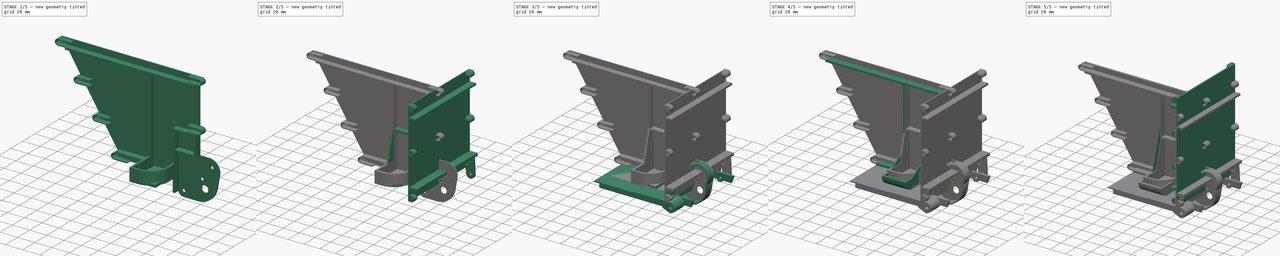
[diagram: build sequence overview — one tinted view per stage of 5, left to right]
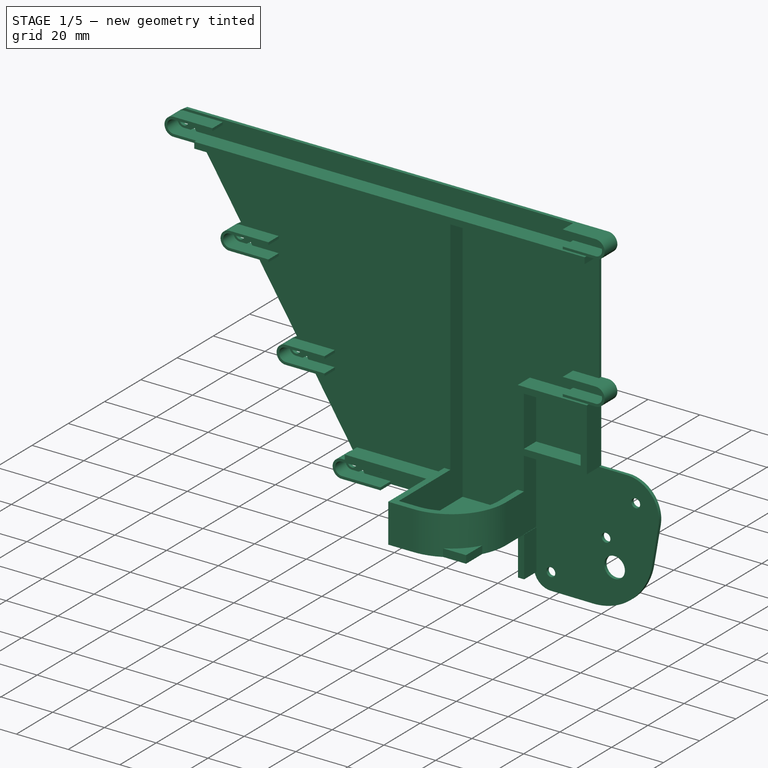
[diagram: stage 1 of 5 — iso view after this stage's code; geometry added in this stage tinted green]
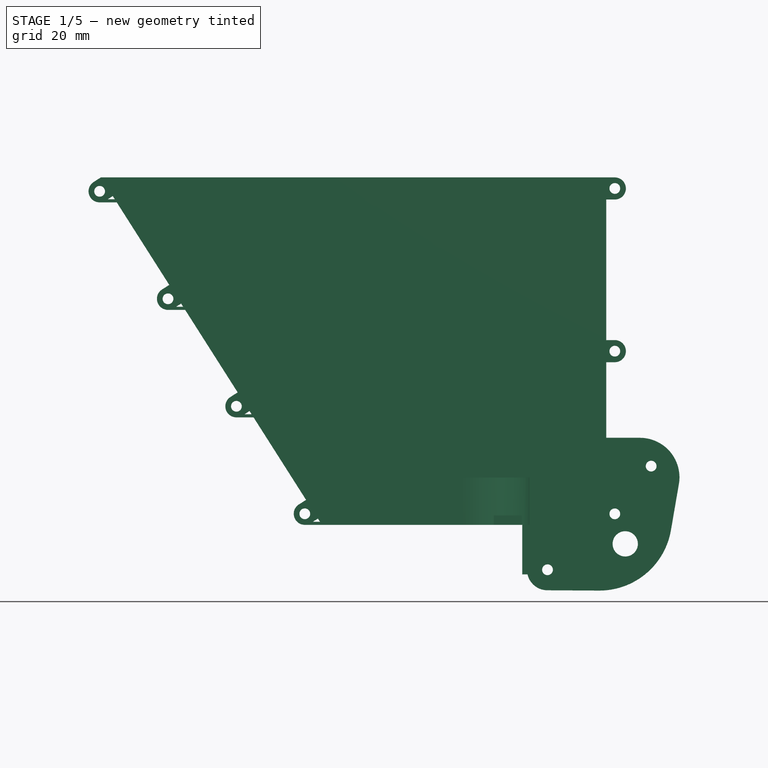
[diagram: stage 1 of 5 — front view after this stage's code; geometry added in this stage tinted green]
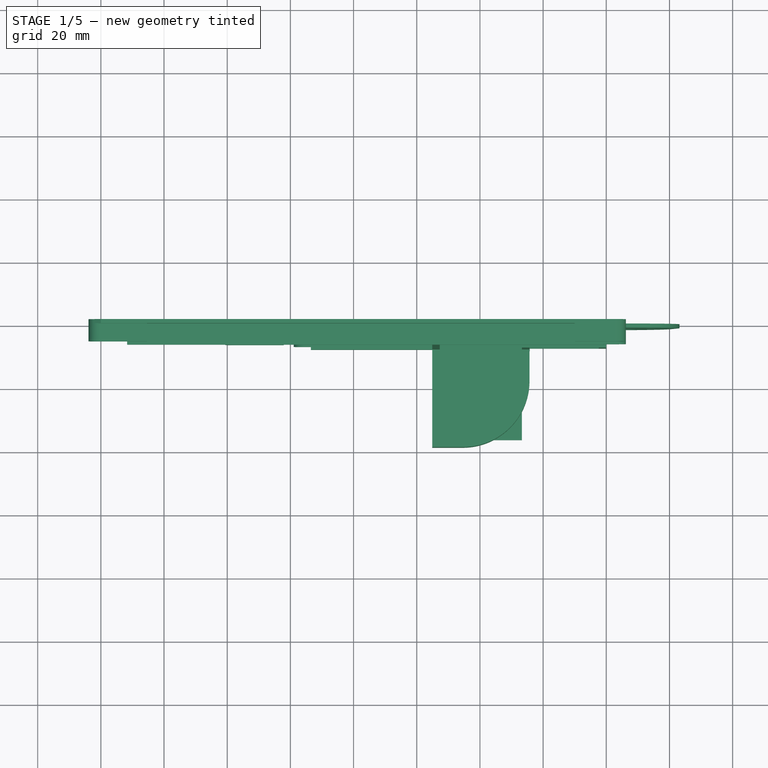
[diagram: stage 1 of 5 — top view after this stage's code; geometry added in this stage tinted green]
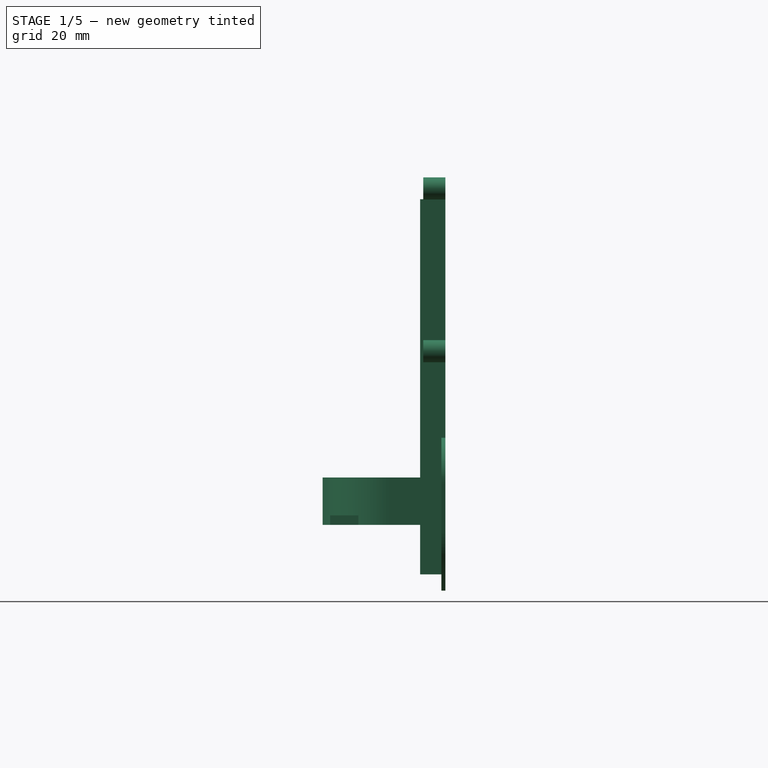
[diagram: stage 1 of 5 — right view after this stage's code; geometry added in this stage tinted green]
FCSTD DOCUMENT  (FreeCAD 0.19R24291 (Git))
Label: bunker5
License: All rights reserved
LicenseURL: http://en.wikipedia.org/wiki/All_rights_reserved
objects: Sketcher::SketchObject×49, PartDesign::Pad×42, PartDesign::Mirrored×16, PartDesign::LinearPattern×13, PartDesign::MultiTransform×11, PartDesign::Pocket×10, PartDesign::Body×6, PartDesign::Revolution×3, PartDesign::Line×2, Spreadsheet::Sheet×1, PartDesign::Plane×1, App::Part×1
note: 208 computed .brp shape members not serialized (recipe doc carries the construction recipe); baked Part::Feature solids carry a one-line shape summary decoded from their .brp

FEATURE [PartDesign::Body] Body001  label="Front"
  Group = -> [Sketch002,Pad001,Sketch003,Pad002,Revolution,Sketch004,Pocket,Sketch011,Pad007,Sketch012,Pad008,Mirrored002,MultiTransform002,Mirrored003,Mirrored004,LinearPattern002,Sketch035,Pad030,Sketch036,Pad031]
  Origin = -> Origin002
  Tip = -> Pad031
FEATURE [App::Part] Part
  Group = -> [Body,Body001,Body002,Body004,Body003]
  Origin = -> Origin001
FEATURE [Sketcher::SketchObject] Sketch037
  FullyConstrained = true
  MapMode = 5
  Placement = pos=(0,0,0) rot=(1,0,0;1.5708rad)
  Support = -> [XZ_Plane006]
  expr: Constraints[55] = Spreadsheet.bunker_height
  expr: Constraints[5] = Spreadsheet.bunker_Length
  sketch-geometry (19):
    g0: LineSegment StartX=-90 StartY=0 StartZ=0 EndX=-160 EndY=110 EndZ=0
    g1: LineSegment StartX=-160 StartY=110 StartZ=0 EndX=0 EndY=110 EndZ=0
    g2: LineSegment StartX=0 StartY=110 StartZ=0 EndX=0 EndY=27.5718 EndZ=0
    g3: Circle CenterX=14.2024 CenterY=18.6073 CenterZ=0 NormalX=0 NormalY=0 NormalZ=1 AngleXU=0 Radius=1.7
    g4: Circle CenterX=-18.6073 CenterY=-14.2024 CenterZ=0 NormalX=0 NormalY=0 NormalZ=1 AngleXU=0 Radius=1.7
    g5: Circle CenterX=6 CenterY=-6 CenterZ=0 NormalX=0 NormalY=0 NormalZ=1 AngleXU=0 Radius=4
    g6: LineSegment StartX=-18.6073 StartY=-14.2024 StartZ=0 EndX=-2.20244 EndY=2.20244 EndZ=0
    g7: LineSegment StartX=-2.20244 StartY=2.20244 StartZ=0 EndX=14.2024 EndY=18.6073 EndZ=0
    g8: LineSegment StartX=6 StartY=-6 StartZ=0 EndX=-2.20244 EndY=2.20244 EndZ=0
    g9: ArcOfCircle CenterX=10.6669 CenterY=15.0718 CenterZ=0 NormalX=0 NormalY=0 NormalZ=1 AngleXU=0 Radius=12.5 StartAngle=6.11274 EndAngle=7.85398
    g10: LineSegment StartX=10.6669 StartY=27.5718 StartZ=0 EndX=0 EndY=27.5718 EndZ=0
    g11: LineSegment StartX=14.2024 StartY=18.6073 StartZ=0 EndX=0 EndY=18.6073 EndZ=0
    g12: LineSegment StartX=-18.6073 StartY=-14.2024 StartZ=0 EndX=-18.6073 EndY=0 EndZ=0
    g13: ArcOfCircle CenterX=-2.20244 CenterY=2.20244 CenterZ=0 NormalX=0 NormalY=0 NormalZ=1 AngleXU=0 Radius=23 StartAngle=4.70657 EndAngle=6.11274
    g14: LineSegment StartX=20.4643 StartY=-1.69876 StartZ=0 EndX=22.9858 EndY=12.9516 EndZ=0
    g15: ArcOfCircle CenterX=-18.6073 CenterY=-14.2024 CenterZ=0 NormalX=0 NormalY=0 NormalZ=1 AngleXU=0 Radius=6.5 StartAngle=3.14159 EndAngle=4.70657
    g16: LineSegment StartX=-18.6451 StartY=-20.7023 StartZ=0 EndX=-2.33619 EndY=-20.7972 EndZ=0
    g17: LineSegment StartX=-25.1073 StartY=-14.2024 StartZ=0 EndX=-25.1073 EndY=0 EndZ=0
    g18: LineSegment StartX=-25.1073 StartY=0 StartZ=0 EndX=-90 EndY=0 EndZ=0
  constraints (56):
    c: Coincident(g18,g0)
    c: Coincident(g0,g1)
    c: Coincident(g1,g2)
    c: Horizontal(g1)
    c: Vertical(g2)
    c: Distance(g1) = 160
    c: Equal(g3,g4)
    c: Diameter(g5) = 8
    c: Coincident(g6,g4)
    c: Coincident(g7,g6)
    c: Coincident(g7,g3)
    c: Coincident(g8,g5)
    c: Coincident(g8,g6)
    c: Perpendicular(g6,g8)
    c: Perpendicular(g7,g8)
    c: Equal(g6,g7)
    c: PointOnObject(g9,g7)
    c: Coincident(g10,g9)
    c: PointOnObject(g10,g-2)
    c: Horizontal(g10)
    c: Tangent(g10,g9)
    c: Coincident(g11,g3)
    c: PointOnObject(g11,g-2)
    c: Horizontal(g11)
    c: Coincident(g12,g4)
    c: PointOnObject(g12,g-1)
    c: Vertical(g12)
    c: Equal(g12,g11)
    c: Coincident(g13,g6)
    c: Coincident(g14,g13)
    c: Coincident(g14,g9)
    c: Tangent(g9,g14)
    c: Tangent(g13,g14)
    c: Diameter(g13) = 46
    c: Coincident(g15,g4)
    c: Coincident(g16,g15)
    c: Coincident(g16,g13)
    c: Tangent(g13,g16)
    c: Tangent(g15,g16)
    c: Coincident(g17,g15)
    c: PointOnObject(g17,g-1)
    c: Vertical(g17)
    c: Tangent(g17,g15)
    c: Coincident(g2,g10)
    c: Coincident(g18,g17)
    c: PointOnObject(g0,g-1)
    c: Distance(g-1,g0) = 90
    c: Diameter(g9) = 25
    c: Diameter(g4) = 3.4
    c: Diameter(g15) = 13
    c: Distance(g4,g3) = 46.4
    c: Distance(g8) = 11.6
    c: DistanceX(g5) = 6
    c: DistanceY(g5) = -6
    c: Distance(g9,g3) = 5
    c: Distance(g-1,g1) = 110
FEATURE [PartDesign::Pad] Pad032
  Direction = (1,1,1)
  Length = 1.28
  Length2 = 100
  Placement = pos=(0,0,0) rot=(1,0,0;1.5708rad)
  Profile = -> Sketch037
  Type = 0
  expr: Length = Spreadsheet.wall_thickness
FEATURE [Sketcher::SketchObject] Sketch038
  AttachmentOffset = pos=(0,106.5,0) rot=(0,0,1;0rad)
  FullyConstrained = true
  MapMode = 5
  Placement = pos=(0,2.36e-14,106.5) rot=(1,0,0;1.5708rad)
  Support = -> [XZ_Plane006]
  expr: .AttachmentOffset.Base.y = Spreadsheet.bunker_height - Spreadsheet.fixture_outerDiameter / 2
  expr: Constraints[7] = Spreadsheet.fixture_outerDiameter
  expr: Constraints[6] = Spreadsheet.fixture_frontDiameter
  expr: Constraints[5] = Spreadsheet.fixture_offsetDiameter
  sketch-geometry (7):
    g0: LineSegment StartX=0 StartY=-3.5 StartZ=0 EndX=0 EndY=0 EndZ=0
    g1: LineSegment StartX=0 StartY=2e-16 StartZ=0 EndX=1 EndY=2e-16 EndZ=0
    g2: ArcOfCircle CenterX=2.7 CenterY=0 CenterZ=0 NormalX=0 NormalY=0 NormalZ=1 AngleXU=0 Radius=1.7 StartAngle=3.14159 EndAngle=6.28319
    g3: ArcOfCircle CenterX=2.7 CenterY=0 CenterZ=0 NormalX=0 NormalY=0 NormalZ=1 AngleXU=0 Radius=3.5 StartAngle=4.71239 EndAngle=6.28319
    g4: LineSegment StartX=0 StartY=-3.5 StartZ=0 EndX=2.7 EndY=-3.5 EndZ=0
    g5: LineSegment StartX=4.4 StartY=-4e-16 StartZ=0 EndX=6.2 EndY=-4e-16 EndZ=0
    g6: LineSegment StartX=1 StartY=2e-16 StartZ=0 EndX=4.4 EndY=-4e-16 EndZ=0
  constraints (20):
    c: Horizontal(g1)
    c: Coincident(g3,g2)
    c: PointOnObject(g2,g1)
    c: Horizontal(g5)
    c: PointOnObject(g3,g5)
    c: Distance(g2,g-2) = 2.7
    c: Diameter(g2) = 3.4
    c: Diameter(g3) = 7
    c: Tangent(g3,g4)
    c: Coincident(g1,g2)
    c: Coincident(g1,g6)
    c: Coincident(g5,g2)
    c: Coincident(g5,g6)
    c: Coincident(g0,g1)
    c: Coincident(g4,g0)
    c: Coincident(g4,g3)
    c: Horizontal(g4)
    c: Coincident(g5,g3)
    c: Coincident(g0,g-1)
    c: Vertical(g0)
FEATURE [PartDesign::Pad] Pad033
  BaseFeature = -> Pad032
  Direction = (1,1,1)
  Length = 1.28
  Length2 = 100
  Placement = pos=(0,0,0) rot=(1,0,0;1.5708rad)
  Profile = -> Sketch038
  Type = 0
  expr: Length = Spreadsheet.wall_thickness
FEATURE [Sketcher::SketchObject] Sketch039
  AttachmentOffset = pos=(0,106.5,0) rot=(0,0,1;0rad)
  FullyConstrained = true
  MapMode = 5
  Placement = pos=(0,2.36e-14,106.5) rot=(1,0,0;1.5708rad)
  Support = -> [XZ_Plane006]
  expr: .AttachmentOffset.Base.y = Spreadsheet.bunker_height - Spreadsheet.fixture_outerDiameter / 2
  expr: Constraints[6] = Spreadsheet.fixture_offsetDiameter
  expr: Constraints[5] = Spreadsheet.fixture_frontDiameter
  sketch-geometry (2):
    g0: ArcOfCircle CenterX=2.7 CenterY=0 CenterZ=0 NormalX=0 NormalY=0 NormalZ=1 AngleXU=0 Radius=1.7 StartAngle=3.14159 EndAngle=6.28319
    g1: LineSegment StartX=1 StartY=2e-16 StartZ=0 EndX=4.4 EndY=-4e-16 EndZ=0
  constraints (7):
    c: PointOnObject(g0,g-1)
    c: PointOnObject(g0,g-1)
    c: PointOnObject(g0,g-1)
    c: Coincident(g1,g0)
    c: Coincident(g1,g0)
    c: Diameter(g0) = 3.4
    c: Distance(g0,g-1) = 2.7
FEATURE [PartDesign::Pocket] Pocket006
  BaseFeature = -> Pad033
  Length = 5
  Length2 = 100
  Placement = pos=(0,0,0) rot=(1,0,0;1.5708rad)
  Profile = -> Sketch039
  Reversed = true
  Type = 0
FEATURE [PartDesign::Mirrored] Mirrored013
  MirrorPlane = -> Sketch038 [H_Axis]
  Placement = pos=(0,0,0) rot=(1,0,0;1.5708rad)
FEATURE [PartDesign::LinearPattern] LinearPattern008
  Direction = -> Sketch038 [V_Axis]
  Length = 103
  Occurrences = 3
  Placement = pos=(0,0,0) rot=(1,0,0;1.5708rad)
  Reversed = true
  expr: Length = Spreadsheet.bunker_height - Spreadsheet.fixture_outerDiameter
FEATURE [PartDesign::MultiTransform] MultiTransform008
  BaseFeature = -> Pocket006
  Originals = -> [Pad033,Pocket006]
  Placement = pos=(0,0,0) rot=(1,0,0;1.5708rad)
  Transformations = -> [Mirrored013,LinearPattern008]
FEATURE [Sketcher::SketchObject] Sketch040
  AttachmentOffset = pos=(0,106.5,0) rot=(0,0,1;0rad)
  FullyConstrained = true
  MapMode = 5
  Placement = pos=(0,2.36e-14,106.5) rot=(1,0,0;1.5708rad)
  Support = -> [XZ_Plane006]
  expr: .AttachmentOffset.Base.y = Spreadsheet.bunker_height - Spreadsheet.fixture_outerDiameter / 2
  expr: Constraints[23] = Spreadsheet.fixture_offsetDiameter
  expr: Constraints[22] = Spreadsheet.fixture_outerDiameter
  sketch-geometry (8):
    g0: LineSegment StartX=0 StartY=-2.5 StartZ=0 EndX=-10 EndY=-2.5 EndZ=0
    g1: LineSegment StartX=0 StartY=-3.5 StartZ=0 EndX=-10 EndY=-3.5 EndZ=0
    g2: LineSegment StartX=-10 StartY=-3.5 StartZ=0 EndX=-10 EndY=-2.5 EndZ=0
    g3: LineSegment StartX=6.2 StartY=-9e-16 StartZ=0 EndX=5.2 EndY=-6e-16 EndZ=0
    g4: LineSegment StartX=0 StartY=-2.5 StartZ=0 EndX=2.7 EndY=-2.5 EndZ=0
    g5: LineSegment StartX=0 StartY=-3.5 StartZ=0 EndX=2.7 EndY=-3.5 EndZ=0
    g6: ArcOfCircle CenterX=2.7 CenterY=0 CenterZ=0 NormalX=0 NormalY=0 NormalZ=1 AngleXU=0 Radius=2.5 StartAngle=4.71239 EndAngle=6.28319
    g7: ArcOfCircle CenterX=2.7 CenterY=0 CenterZ=0 NormalX=0 NormalY=0 NormalZ=1 AngleXU=0 Radius=3.5 StartAngle=4.71239 EndAngle=6.28319
  constraints (25):
    c: PointOnObject(g0,g-2)
    c: PointOnObject(g1,g-2)
    c: Horizontal(g0)
    c: Horizontal(g1)
    c: Coincident(g2,g1)
    c: Coincident(g2,g0)
    c: Vertical(g2)
    c: PointOnObject(g3,g-1)
    c: PointOnObject(g3,g-1)
    c: Distance(g3) = 1
    c: Coincident(g4,g0)
    c: Horizontal(g4)
    c: Coincident(g5,g1)
    c: Horizontal(g5)
    c: PointOnObject(g6,g-1)
    c: Coincident(g6,g3)
    c: Coincident(g6,g4)
    c: Coincident(g7,g6)
    c: Coincident(g7,g5)
    c: Coincident(g7,g3)
    c: Tangent(g6,g4)
    c: Tangent(g7,g5)
    c: Diameter(g7) = 7
    c: Distance(g6,g-1) = 2.7
    c: Distance(g0) = 10
FEATURE [PartDesign::Pad] Pad034
  BaseFeature = -> MultiTransform008
  Direction = (1,1,1)
  Length = 7
  Length2 = 100
  Placement = pos=(0,0,0) rot=(1,0,0;1.5708rad)
  Profile = -> Sketch040
  Type = 0
FEATURE [PartDesign::Mirrored] Mirrored014
  MirrorPlane = -> Sketch040 [H_Axis]
  Placement = pos=(0,0,0) rot=(1,0,0;1.5708rad)
FEATURE [PartDesign::LinearPattern] LinearPattern009
  Direction = -> Sketch040 [V_Axis]
  Length = 51.5
  Occurrences = 2
  Placement = pos=(0,0,0) rot=(1,0,0;1.5708rad)
  Reversed = true
  expr: Length = Spreadsheet.bunker_height / 2 - Spreadsheet.fixture_outerDiameter / 2
FEATURE [PartDesign::MultiTransform] MultiTransform009
  BaseFeature = -> Pad034
  Originals = -> [Pad034]
  Placement = pos=(0,0,0) rot=(1,0,0;1.5708rad)
  Transformations = -> [Mirrored014,LinearPattern009]
FEATURE [Sketcher::SketchObject] Sketch041
  AttachmentOffset = pos=(-158.121,107.047,0) rot=(0,0,1;-2.57486rad)
  FullyConstrained = true
  MapMode = 5
  Placement = pos=(-158.121,2.38e-14,107.047) rot=(-0.201679,-0.692577,0.692577;3.53961rad)
  Support = -> [XZ_Plane006]
  expr: .AttachmentOffset.Base.x = -Spreadsheet.bunker_Length + Spreadsheet.fixture_outerDiameter / 2 * sin(Spreadsheet.back_wall_bend)
  expr: .AttachmentOffset.Base.y = Spreadsheet.bunker_height - Spreadsheet.fixture_outerDiameter / 2 * cos(Spreadsheet.back_wall_bend)
  expr: .AttachmentOffset.Rotation.Angle = -180° + Spreadsheet.back_wall_bend
  expr: Constraints[7] = Sketch038.Constraints[7]
  expr: Constraints[6] = Sketch038.Constraints[6]
  expr: Constraints[5] = Sketch038.Constraints[5]
  sketch-geometry (7):
    g0: LineSegment StartX=0 StartY=-3.5 StartZ=0 EndX=0 EndY=0 EndZ=0
    g1: LineSegment StartX=0 StartY=0 StartZ=0 EndX=1 EndY=0 EndZ=0
    g2: ArcOfCircle CenterX=2.7 CenterY=0 CenterZ=0 NormalX=0 NormalY=0 NormalZ=1 AngleXU=0 Radius=1.7 StartAngle=3.14159 EndAngle=6.28319
    g3: ArcOfCircle CenterX=2.7 CenterY=0 CenterZ=0 NormalX=0 NormalY=0 NormalZ=1 AngleXU=0 Radius=3.5 StartAngle=4.71239 EndAngle=6.28319
    g4: LineSegment StartX=0 StartY=-3.5 StartZ=0 EndX=2.7 EndY=-3.5 EndZ=0
    g5: LineSegment StartX=4.4 StartY=-9e-16 StartZ=0 EndX=6.2 EndY=-9e-16 EndZ=0
    g6: LineSegment StartX=1 StartY=0 StartZ=0 EndX=4.4 EndY=-9e-16 EndZ=0
  constraints (20):
    c: Horizontal(g1)
    c: Coincident(g3,g2)
    c: PointOnObject(g2,g1)
    c: Horizontal(g5)
    c: PointOnObject(g3,g5)
    c: Distance(g2,g-2) = 2.7
    c: Diameter(g2) = 3.4
    c: Diameter(g3) = 7
    c: Tangent(g3,g4)
    c: Coincident(g1,g2)
    c: Coincident(g1,g6)
    c: Coincident(g5,g2)
    c: Coincident(g5,g6)
    c: Coincident(g0,g1)
    c: Coincident(g4,g0)
    c: Coincident(g4,g3)
    c: Horizontal(g4)
    c: Coincident(g5,g3)
    c: Coincident(g0,g-1)
    c: Vertical(g0)
FEATURE [PartDesign::Pad] Pad035
  BaseFeature = -> MultiTransform009
  Direction = (1,1,1)
  Length = 1.28
  Length2 = 100
  Placement = pos=(0,0,0) rot=(1,0,0;1.5708rad)
  Profile = -> Sketch041
  Type = 0
  expr: Length = Spreadsheet.wall_thickness
FEATURE [Sketcher::SketchObject] Sketch042
  AttachmentOffset = pos=(-158.121,107.047,0) rot=(0,0,1;-2.57486rad)
  FullyConstrained = true
  MapMode = 5
  Placement = pos=(-158.121,2.38e-14,107.047) rot=(-0.201679,-0.692577,0.692577;3.53961rad)
  Support = -> [XZ_Plane006]
  expr: .AttachmentOffset.Base.x = -Spreadsheet.bunker_Length + Spreadsheet.fixture_outerDiameter / 2 * sin(Spreadsheet.back_wall_bend)
  expr: .AttachmentOffset.Base.y = Spreadsheet.bunker_height - Spreadsheet.fixture_outerDiameter / 2 * cos(Spreadsheet.back_wall_bend)
  expr: .AttachmentOffset.Rotation.Angle = -180° + Spreadsheet.back_wall_bend
  expr: Constraints[6] = Sketch039.Constraints[6]
  expr: Constraints[5] = Sketch039.Constraints[5]
  sketch-geometry (2):
    g0: ArcOfCircle CenterX=2.7 CenterY=0 CenterZ=0 NormalX=0 NormalY=0 NormalZ=1 AngleXU=0 Radius=1.7 StartAngle=3.14159 EndAngle=6.28319
    g1: LineSegment StartX=1 StartY=2e-16 StartZ=0 EndX=4.4 EndY=-4e-16 EndZ=0
  constraints (7):
    c: PointOnObject(g0,g-1)
    c: PointOnObject(g0,g-1)
    c: PointOnObject(g0,g-1)
    c: Coincident(g1,g0)
    c: Coincident(g1,g0)
    c: Diameter(g0) = 3.4
    c: Distance(g0,g-1) = 2.7
FEATURE [Sketcher::SketchObject] Sketch043
  FullyConstrained = true
  MapMode = 5
  Placement = pos=(0,0,0) rot=(1,0,0;1.5708rad)
  Support = -> [XZ_Plane006]
  expr: Constraints[18] = Spreadsheet.fixture_outerDiameter
  sketch-geometry (11):
    g0: LineSegment StartX=-163.899 StartY=105.598 StartZ=0 EndX=-162.899 EndY=105.598 EndZ=0
    g1: ArcOfCircle CenterX=-160.399 CenterY=105.598 CenterZ=0 NormalX=0 NormalY=0 NormalZ=1 AngleXU=0 Radius=3.5 StartAngle=1.5708 EndAngle=3.14159
    g2: LineSegment StartX=-160.399 StartY=109.098 StartZ=0 EndX=-145.399 EndY=109.098 EndZ=0
    g3: ArcOfCircle CenterX=-160.399 CenterY=105.598 CenterZ=0 NormalX=0 NormalY=0 NormalZ=1 AngleXU=0 Radius=2.5 StartAngle=1.5708 EndAngle=3.14159
    g4: LineSegment StartX=-160.399 StartY=108.098 StartZ=0 EndX=-145.399 EndY=108.098 EndZ=0
    g5: LineSegment StartX=-145.399 StartY=109.098 StartZ=0 EndX=-145.399 EndY=108.098 EndZ=0
    g6: ArcOfCircle CenterX=-160.399 CenterY=105.598 CenterZ=0 NormalX=0 NormalY=0 NormalZ=1 AngleXU=0 Radius=2.5 StartAngle=3.14159 EndAngle=4.71239
    g7: ArcOfCircle CenterX=-160.399 CenterY=105.598 CenterZ=0 NormalX=0 NormalY=0 NormalZ=1 AngleXU=0 Radius=3.5 StartAngle=3.14159 EndAngle=4.71239
    g8: LineSegment StartX=-160.399 StartY=103.098 StartZ=0 EndX=-145.399 EndY=103.098 EndZ=0
    g9: LineSegment StartX=-145.399 StartY=103.098 StartZ=0 EndX=-145.399 EndY=102.098 EndZ=0
    g10: LineSegment StartX=-145.399 StartY=102.098 StartZ=0 EndX=-160.399 EndY=102.098 EndZ=0
  constraints (33):
    c: Horizontal(g0)
    c: Distance(g0) = 1
    c: Coincident(g1,g0)
    c: Coincident(g2,g1)
    c: Horizontal(g2)
    c: Coincident(g3,g1)
    c: Coincident(g3,g0)
    c: Coincident(g4,g3)
    c: Horizontal(g4)
    c: Coincident(g5,g2)
    c: Coincident(g5,g4)
    c: Vertical(g5)
    c: Perpendicular(g1,g0)
    c: Distance(g4) = 15
    c: Tangent(g3,g4)
    c: Tangent(g1,g2)
    c: DistanceX(g1) = -160.399
    c: DistanceY(g1) = 105.598
    c: Diameter(g1) = 7
    c: Coincident(g6,g1)
    c: Coincident(g6,g3)
    c: Coincident(g7,g1)
    c: Coincident(g7,g1)
    c: Coincident(g8,g6)
    c: Horizontal(g8)
    c: Coincident(g9,g8)
    c: Vertical(g9)
    c: Coincident(g10,g7)
    c: Horizontal(g10)
    c: Coincident(g9,g10)
    c: Equal(g4,g8)
    c: Tangent(g8,g6)
    c: Tangent(g10,g7)
FEATURE [PartDesign::Pad] Pad036
  BaseFeature = -> Pad035
  Direction = (1,1,1)
  Length = 7
  Length2 = 100
  Placement = pos=(0,0,0) rot=(1,0,0;1.5708rad)
  Profile = -> Sketch043
  Type = 0
FEATURE [PartDesign::Pocket] Pocket007
  BaseFeature = -> Pad036
  Length = 5
  Length2 = 100
  Placement = pos=(0,0,0) rot=(1,0,0;1.5708rad)
  Profile = -> Sketch042
  Reversed = true
  Type = 0
FEATURE [PartDesign::Mirrored] Mirrored015
  MirrorPlane = -> Sketch041 [H_Axis]
  Placement = pos=(0,0,0) rot=(1,0,0;1.5708rad)
FEATURE [PartDesign::LinearPattern] LinearPattern010
  Direction = -> Sketch041 [V_Axis]
  Length = 121
  Occurrences = 4
  Placement = pos=(0,0,0) rot=(1,0,0;1.5708rad)
FEATURE [PartDesign::MultiTransform] MultiTransform010
  BaseFeature = -> Pocket007
  Originals = -> [Pad035,Pocket007]
  Placement = pos=(0,0,0) rot=(1,0,0;1.5708rad)
  Transformations = -> [Mirrored015,LinearPattern010]
FEATURE [PartDesign::Line] DatumLine001
  AttacherType = Attacher::AttachEngineLine
  AttachmentOffset = pos=(0,0,0) rot=(0,-1,0;0.566729rad)
  Length = 20
  MapMode = 29
  Placement = pos=(0,0,0) rot=(0,-1,0;0.566729rad)
  ResizeMode = 0
  Support = -> [Z_Axis006]
  expr: .AttachmentOffset.Rotation.Pitch = -Spreadsheet.back_wall_bend
FEATURE [PartDesign::LinearPattern] LinearPattern011
  BaseFeature = -> MultiTransform010
  Direction = -> DatumLine001
  Length = 121
  Occurrences = 4
  Originals = -> [Pad036]
  Placement = pos=(0,0,0) rot=(1,0,0;1.5708rad)
  Reversed = true
FEATURE [Sketcher::SketchObject] Sketch044
  FullyConstrained = true
  MapMode = 5
  Support = -> [XY_Plane006]
  expr: Constraints[8] = -25.11 - 1.6
  sketch-geometry (4):
    g0: LineSegment StartX=-26.71 StartY=-1.28 StartZ=0 EndX=-52.71 EndY=-1.28 EndZ=0
    g1: LineSegment StartX=-52.71 StartY=-1.28 StartZ=0 EndX=-52.71 EndY=-36.48 EndZ=0
    g2: LineSegment StartX=-52.71 StartY=-36.48 StartZ=0 EndX=-26.71 EndY=-36.48 EndZ=0
    g3: LineSegment StartX=-26.71 StartY=-36.48 StartZ=0 EndX=-26.71 EndY=-1.28 EndZ=0
  constraints (12):
    c: Coincident(g0,g1)
    c: Coincident(g1,g2)
    c: Coincident(g2,g3)
    c: Coincident(g3,g0)
    c: Horizontal(g0)
    c: Horizontal(g2)
    c: Vertical(g1)
    c: Vertical(g3)
    c: DistanceX(g0) = -26.71
    c: DistanceY(g0) = -1.28
    c: Distance(g1) = 35.2
    c: Distance(g2) = 26
FEATURE [Sketcher::SketchObject] Sketch045
  FullyConstrained = false
  MapMode = 5
  Support = -> [XY_Plane006]
  expr: Constraints[9] = Sketch044.Constraints[10]
  expr: Constraints[8] = Sketch044.Constraints[9]
  expr: Constraints[7] = Sketch044.Constraints[8]
  sketch-geometry (13):
    g0: LineSegment StartX=-26.71 StartY=-1.28 StartZ=0 EndX=-52.71 EndY=-1.28 EndZ=0
    g1: LineSegment StartX=-52.71 StartY=-1.28 StartZ=0 EndX=-52.71 EndY=-36.48 EndZ=0
    g2: LineSegment StartX=-52.71 StartY=-36.48 StartZ=0 EndX=-45.3965 EndY=-36.48 EndZ=0
    g3: LineSegment StartX=-26.71 StartY=-17.7935 StartZ=0 EndX=-26.71 EndY=-1.28 EndZ=0
    g4: LineSegment StartX=-26.71 StartY=-1.28 StartZ=0 EndX=-24.31 EndY=-1.28 EndZ=0
    g5: LineSegment StartX=-24.31 StartY=-1.28 StartZ=0 EndX=-24.31 EndY=-17.7935 EndZ=0
    g6: LineSegment StartX=-45.3965 StartY=-38.88 StartZ=0 EndX=-55.11 EndY=-38.88 EndZ=0
    g7: LineSegment StartX=-55.11 StartY=-38.88 StartZ=0 EndX=-55.11 EndY=-1.28 EndZ=0
    g8: LineSegment StartX=-55.11 StartY=-1.28 StartZ=0 EndX=-52.71 EndY=-1.28 EndZ=0
    g9: LineSegment StartX=-48.2236 StartY=-36.48 StartZ=0 EndX=-48.2236 EndY=-38.88 EndZ=0
    g10: ArcOfCircle CenterX=-45.3965 CenterY=-17.7935 CenterZ=0 NormalX=0 NormalY=0 NormalZ=1 AngleXU=0 Radius=18.6865 StartAngle=4.71239 EndAngle=6.28319
    g11: ArcOfCircle CenterX=-45.3965 CenterY=-17.7935 CenterZ=0 NormalX=0 NormalY=0 NormalZ=1 AngleXU=0 Radius=21.0865 StartAngle=4.71239 EndAngle=6.28319
    g12: GeomPoint X=-24.31 Y=-38.88 Z=0
  constraints (33):
    c: Coincident(g0,g1)
    c: Coincident(g1,g2)
    c: Coincident(g3,g0)
    c: Horizontal(g0)
    c: Horizontal(g2)
    c: Vertical(g1)
    c: Vertical(g3)
    c: DistanceX(g0) = -26.71
    c: DistanceY(g0) = -1.28
    c: Distance(g1) = 35.2
    c: Coincident(g4,g3)
    c: Horizontal(g4)
    c: Coincident(g4,g5)
    c: Vertical(g5)
    c: Horizontal(g6)
    c: Coincident(g6,g7)
    c: Vertical(g7)
    c: Coincident(g7,g8)
    c: Coincident(g8,g1)
    c: Horizontal(g8)
    c: Equal(g8,g4)
    c: PointOnObject(g9,g2)
    c: PointOnObject(g9,g6)
    c: Vertical(g9)
    c: Distance(g4) = 2.4
    c: Tangent(g2,g10) = -1.5708
    c: Tangent(g3,g10) = -1.5708
    c: Distance(g0) = 26
    c: PointOnObject(g12,g5)
    c: PointOnObject(g12,g6)
    c: Tangent(g5,g11) = 1.5708
    c: Tangent(g6,g11) = 1.5708
    c: Coincident(g11,g10)
FEATURE [Sketcher::SketchObject] Sketch046
  FullyConstrained = true
  MapMode = 5
  Support = -> [XY_Plane006]
  expr: Constraints[11] = Sketch044.Constraints[11]
  expr: Constraints[10] = Sketch044.Constraints[10]
  expr: Constraints[9] = Sketch044.Constraints[9]
  expr: Constraints[8] = Sketch044.Constraints[8]
  sketch-geometry (6):
    g0: LineSegment StartX=-26.71 StartY=-1.28 StartZ=0 EndX=-52.71 EndY=-1.28 EndZ=0
    g1: LineSegment StartX=-52.71 StartY=-1.28 StartZ=0 EndX=-52.71 EndY=-36.48 EndZ=0
    g2: LineSegment StartX=-52.71 StartY=-36.48 StartZ=0 EndX=-26.71 EndY=-36.48 EndZ=0
    g3: LineSegment StartX=-26.71 StartY=-36.48 StartZ=0 EndX=-26.71 EndY=-1.28 EndZ=0
    g4: Circle CenterX=-45.51 CenterY=-14.28 CenterZ=0 NormalX=0 NormalY=0 NormalZ=1 AngleXU=0 Radius=3.2
    g5: Circle CenterX=-45.51 CenterY=-29.28 CenterZ=0 NormalX=0 NormalY=0 NormalZ=1 AngleXU=0 Radius=3.2
  constraints (18):
    c: Coincident(g0,g1)
    c: Coincident(g1,g2)
    c: Coincident(g2,g3)
    c: Coincident(g3,g0)
    c: Horizontal(g0)
    c: Horizontal(g2)
    c: Vertical(g1)
    c: Vertical(g3)
    c: DistanceX(g0) = -26.71
    c: DistanceY(g0) = -1.28
    c: Distance(g1) = 35.2
    c: Distance(g2) = 26
    c: Vertical(g5,g4)
    c: Distance(g4,g0) = 13
    c: Distance(g4,g5) = 15
    c: Distance(g5,g1) = 7.2
    c: Equal(g5,g4)
    c: Diameter(g5) = 6.4
FEATURE [PartDesign::Pad] Pad037
  BaseFeature = -> LinearPattern011
  Direction = (1,1,1)
  Length = 3
  Length2 = 100
  Placement = pos=(0,0,0) rot=(1,0,0;1.5708rad)
  Profile = -> Sketch044
  Type = 0
FEATURE [PartDesign::Pad] Pad038
  BaseFeature = -> Pad037
  Direction = (1,1,1)
  Length = 15
  Length2 = 100
  Placement = pos=(0,0,0) rot=(1,0,0;1.5708rad)
  Profile = -> Sketch045
  Type = 0
FEATURE [Sketcher::SketchObject] Sketch047
  FullyConstrained = false
  MapMode = 5
  Placement = pos=(0,0,0) rot=(1,0,0;1.5708rad)
  Support = -> [XZ_Plane006]
  sketch-geometry (30):
    g0: LineSegment StartX=-151.685 StartY=100.697 StartZ=0 EndX=-55.1095 EndY=100.697 EndZ=0
    g1: LineSegment StartX=-0.830705 StartY=100.697 StartZ=0 EndX=-0.830705 EndY=103.097 EndZ=0
    g2: LineSegment StartX=-0.830705 StartY=103.097 StartZ=0 EndX=-151.685 EndY=103.097 EndZ=0
    g3: LineSegment StartX=-151.685 StartY=103.097 StartZ=0 EndX=-151.685 EndY=100.697 EndZ=0
    g4: LineSegment StartX=-52.7095 StartY=14.9038 StartZ=0 EndX=-55.1095 EndY=14.9038 EndZ=0
    g5: LineSegment StartX=-55.1095 StartY=14.9038 StartZ=0 EndX=-55.1095 EndY=100.697 EndZ=0
    g6: LineSegment StartX=-52.7095 StartY=100.697 StartZ=0 EndX=-52.7095 EndY=14.9038 EndZ=0
    g7: LineSegment StartX=-26.7118 StartY=14.936 StartZ=0 EndX=-24.3118 EndY=14.936 EndZ=0
    g8: LineSegment StartX=-24.3118 StartY=14.936 StartZ=0 EndX=-24.3118 EndY=27.4875 EndZ=0
    g9: LineSegment StartX=-26.7118 StartY=51.5763 StartZ=0 EndX=-26.7118 EndY=14.936 EndZ=0
    g10: LineSegment StartX=-26.7118 StartY=51.5763 StartZ=0 EndX=0 EndY=51.5763 EndZ=0
    g11: LineSegment StartX=-2.4 StartY=49.1763 StartZ=0 EndX=-24.3118 EndY=49.1763 EndZ=0
    g12: LineSegment StartX=-2.4 StartY=49.1763 StartZ=0 EndX=-2.4 EndY=29.8875 EndZ=0
    g13: LineSegment StartX=-24.3118 StartY=27.4875 StartZ=0 EndX=0 EndY=27.4875 EndZ=0
    g14: LineSegment StartX=0 StartY=27.4875 StartZ=0 EndX=0 EndY=51.5763 EndZ=0
    g15: LineSegment StartX=-52.7095 StartY=100.697 StartZ=0 EndX=-0.830705 EndY=100.697 EndZ=0
    g16: LineSegment StartX=-16.4273 StartY=49.1763 StartZ=0 EndX=-16.4273 EndY=51.5763 EndZ=0
    g17: LineSegment StartX=-2.4 StartY=29.8875 StartZ=0 EndX=-24.3118 EndY=29.8875 EndZ=0
    g18: LineSegment StartX=-24.3118 StartY=29.8875 StartZ=0 EndX=-24.3118 EndY=49.1763 EndZ=0
    g19: LineSegment StartX=-22.5266 StartY=29.8875 StartZ=0 EndX=-22.5266 EndY=27.4875 EndZ=0
    g20: LineSegment StartX=-24.3118 StartY=32.0974 StartZ=0 EndX=-26.7118 EndY=32.0974 EndZ=0
    g21: LineSegment StartX=-2.4 StartY=41.6993 StartZ=0 EndX=0 EndY=41.6993 EndZ=0
    g22: LineSegment StartX=-53.8822 StartY=6.96585 StartZ=0 EndX=-93.5301 EndY=6.96585 EndZ=0
    g23: LineSegment StartX=-93.5301 StartY=6.96585 StartZ=0 EndX=-93.5301 EndY=9.36585 EndZ=0
    g24: LineSegment StartX=-93.5301 StartY=9.36585 StartZ=0 EndX=-53.8822 EndY=9.36585 EndZ=0
    g25: LineSegment StartX=-53.8822 StartY=9.36585 StartZ=0 EndX=-53.8822 EndY=6.96585 EndZ=0
    g26: LineSegment StartX=-24.2109 StartY=0 StartZ=0 EndX=-26.6109 EndY=0 EndZ=0
    g27: LineSegment StartX=-26.6109 StartY=0 StartZ=0 EndX=-26.6109 EndY=-15.6549 EndZ=0
    g28: LineSegment StartX=-26.6109 StartY=-15.6549 StartZ=0 EndX=-24.2109 EndY=-15.6549 EndZ=0
    g29: LineSegment StartX=-24.2109 StartY=-15.6549 StartZ=0 EndX=-24.2109 EndY=0 EndZ=0
  constraints (74):
    c: Coincident(g15,g1)
    c: Coincident(g1,g2)
    c: Coincident(g2,g3)
    c: Coincident(g3,g0)
    c: Horizontal(g0)
    c: Horizontal(g2)
    c: Vertical(g1)
    c: Vertical(g3)
    c: Coincident(g4,g5)
    c: Coincident(g6,g4)
    c: Horizontal(g4)
    c: Vertical(g5)
    c: Vertical(g6)
    c: Coincident(g7,g8)
    c: Coincident(g9,g7)
    c: Horizontal(g7)
    c: Vertical(g8)
    c: Vertical(g9)
    c: Horizontal(g10)
    c: Horizontal(g11)
    c: Coincident(g13,g14)
    c: Horizontal(g13)
    c: Vertical(g12)
    c: Vertical(g14)
    c: Coincident(g18,g11)
    c: Coincident(g11,g12)
    c: Coincident(g9,g10)
    c: Coincident(g10,g14)
    c: Coincident(g0,g5)
    c: Coincident(g15,g6)
    c: Tangent(g0,g15)
    c: Equal(g1,g4)
    c: Equal(g4,g7)
    c: PointOnObject(g16,g11)
    c: PointOnObject(g16,g10)
    c: Vertical(g16)
    c: Distance(g16) = 2.4
    c: PointOnObject(g13,g-2)
    c: Horizontal(g17)
    c: Coincident(g12,g17)
    c: Equal(g16,g1)
    c: Coincident(g8,g13)
    c: Coincident(g18,g17)
    c: Tangent(g8,g18)
    c: PointOnObject(g19,g17)
    c: PointOnObject(g19,g13)
    c: Vertical(g19)
    c: PointOnObject(g20,g18)
    c: PointOnObject(g20,g9)
    c: Horizontal(g20)
    c: Equal(g19,g20)
    c: PointOnObject(g21,g12)
    c: PointOnObject(g21,g14)
    c: Horizontal(g21)
    c: Equal(g21,g16)
    c: Coincident(g22,g23)
    c: Coincident(g23,g24)
    c: Coincident(g24,g25)
    c: Coincident(g25,g22)
    c: Horizontal(g22)
    c: Horizontal(g24)
    c: Vertical(g23)
    c: Vertical(g25)
    c: Equal(g23,g16)
    c: Coincident(g26,g27)
    c: Coincident(g27,g28)
    c: Coincident(g28,g29)
    c: Coincident(g29,g26)
    c: Horizontal(g26)
    c: Horizontal(g28)
    c: Vertical(g27)
    c: Vertical(g29)
    c: PointOnObject(g26,g-1)
    c: Equal(g28,g16)
FEATURE [PartDesign::Pad] Pad039
  BaseFeature = -> Pad038
  Direction = (1,1,1)
  Length = 8
  Length2 = 100
  Placement = pos=(0,0,0) rot=(1,0,0;1.5708rad)
  Profile = -> Sketch047
  Type = 0
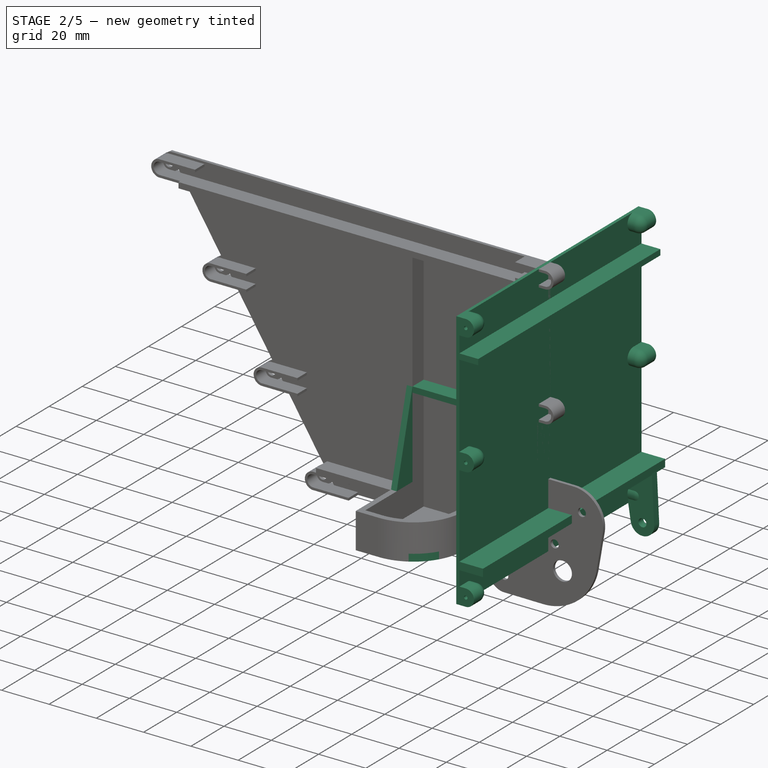
[diagram: stage 2 of 5 — iso view after this stage's code; geometry added in this stage tinted green]
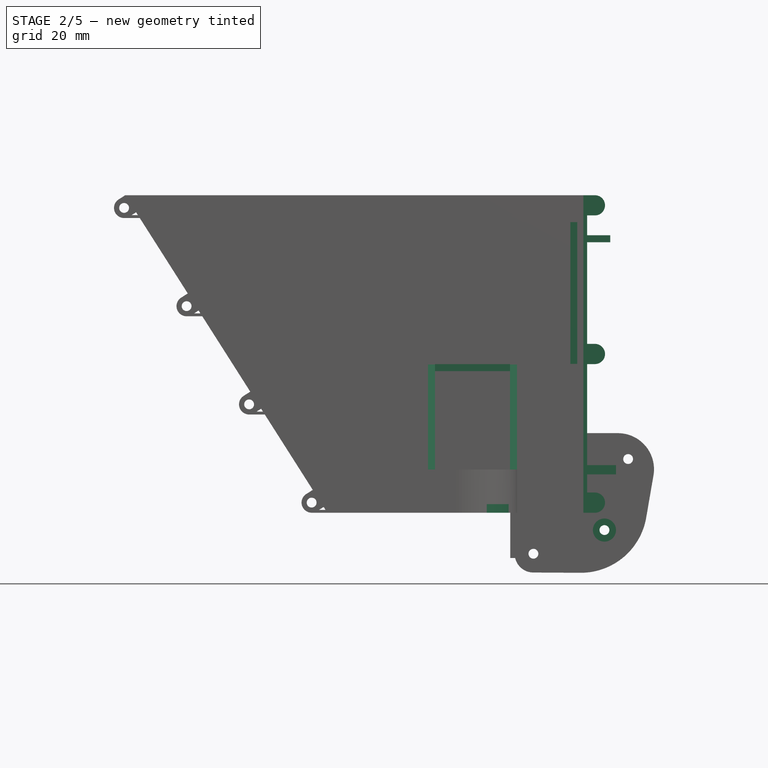
[diagram: stage 2 of 5 — front view after this stage's code; geometry added in this stage tinted green]
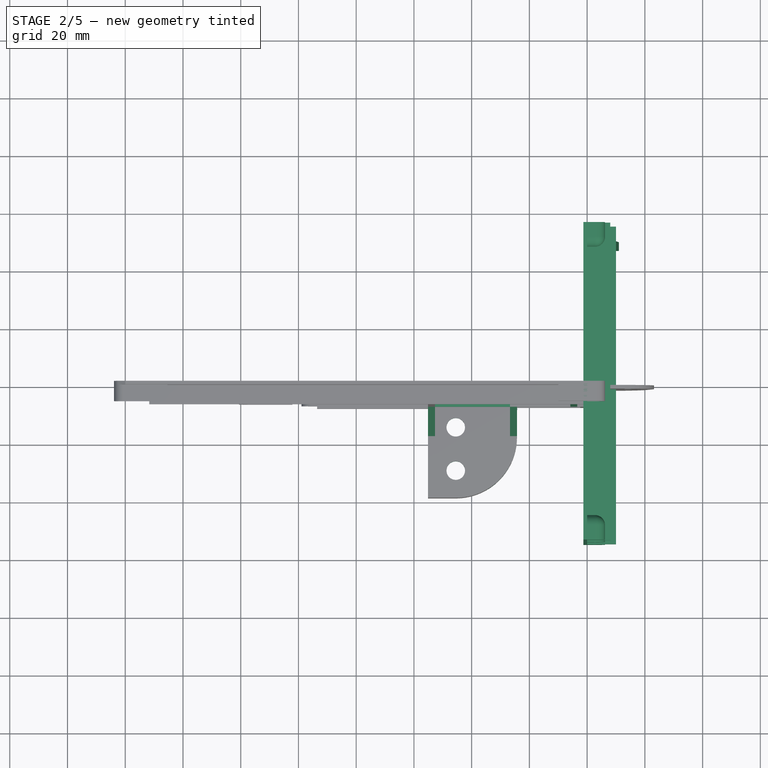
[diagram: stage 2 of 5 — top view after this stage's code; geometry added in this stage tinted green]
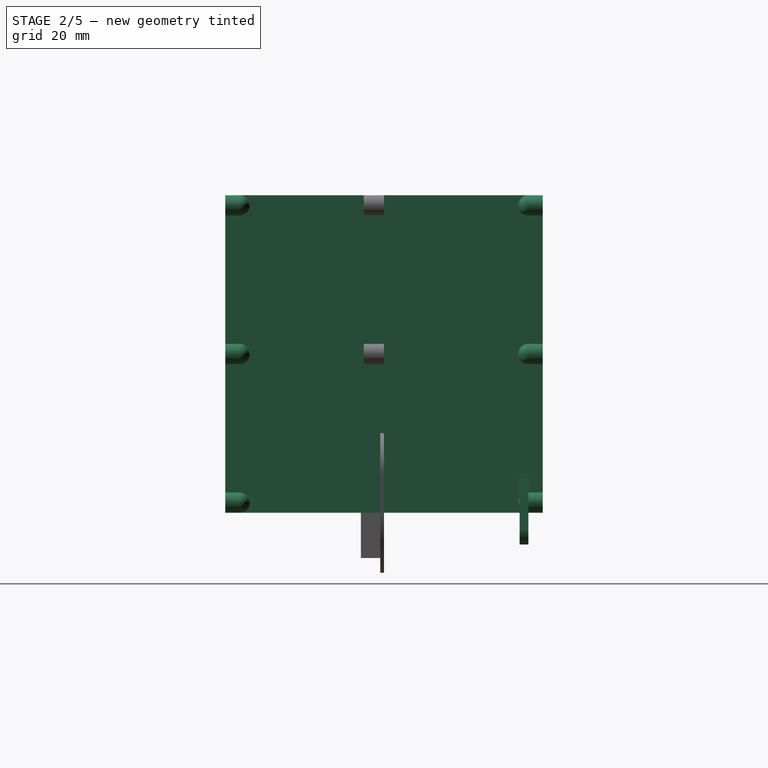
[diagram: stage 2 of 5 — right view after this stage's code; geometry added in this stage tinted green]
FEATURE [Spreadsheet::Sheet] Spreadsheet
  cells = B1(bunker_width)=110; D1(fixture_frontDiameter)=3.4; B2(bunker_height)=110; D2(fixture_backDiameter)=1.5; B3(bunker_hopperThroatLength)=90; D3(fixture_outerDiameter)=7; B4(bunker_Length)=160; D4(fixture_offsetDiameter)==fixture_frontDiameter / 2 + 1; B5(wall_thickness)==4 * 0.32; D5(back_wall_bend)==atan((bunker_Length - bunker_hopperThroatLength) / bunker_height); B6(bunker_backsideLength)==hypot(bunker_Length - bunker_hopperThroatLength; bunker_height); B7(x)==fixture_offsetDiameter / tan(90° - back_wall_bend) + fixture_outerDiameter / sin(90° - back_wall_bend) / 2
FEATURE [Sketcher::SketchObject] Sketch001
  FullyConstrained = true
  MapMode = 5
  Placement = pos=(0,0,0) rot=(0.57735,0.57735,0.57735;2.0944rad)
  Support = -> [YZ_Plane]
FEATURE [Sketcher::SketchObject] Sketch002
  FullyConstrained = true
  MapMode = 5
  Placement = pos=(0,0,0) rot=(0.57735,0.57735,0.57735;2.0944rad)
  Support = -> [YZ_Plane002]
  expr: Constraints[10] = Spreadsheet.bunker_width / 2
  expr: Constraints[9] = Spreadsheet.bunker_height
  sketch-geometry (4):
    g0: LineSegment StartX=0 StartY=0 StartZ=0 EndX=55 EndY=0 EndZ=0
    g1: LineSegment StartX=55 StartY=0 StartZ=0 EndX=55 EndY=110 EndZ=0
    g2: LineSegment StartX=55 StartY=110 StartZ=0 EndX=0 EndY=110 EndZ=0
    g3: LineSegment StartX=0 StartY=110 StartZ=0 EndX=0 EndY=0 EndZ=0
  constraints (11):
    c: Coincident(g0,g1)
    c: Coincident(g1,g2)
    c: Coincident(g2,g3)
    c: Coincident(g3,g0)
    c: Horizontal(g0)
    c: Horizontal(g2)
    c: Vertical(g1)
    c: Vertical(g3)
    c: Coincident(g0,g-1)
    c: Distance(g3) = 110
    c: Distance(g0) = 55
FEATURE [PartDesign::Pad] Pad001
  Direction = (1,1,1)
  Length = 1.28
  Length2 = 100
  Placement = pos=(0,0,0) rot=(0.57735,0.57735,0.57735;2.0944rad)
  Profile = -> Sketch002
  Reversed = true
  Type = 0
  expr: Length = Spreadsheet.wall_thickness
FEATURE [Sketcher::SketchObject] Sketch003
  ExternalGeometry = -> [Pad001]
  FullyConstrained = true
  MapMode = 5
  Placement = pos=(2.42e-14,55,-1.21e-14) rot=(0.57735,0.57735,0.57735;4.18879rad)
  Support = -> [Pad001]
  expr: Constraints[9] = Spreadsheet.fixture_offsetDiameter
  expr: Constraints[8] = Spreadsheet.fixture_outerDiameter
  expr: Constraints[7] = Spreadsheet.fixture_backDiameter
  sketch-geometry (7):
    g0: ArcOfCircle CenterX=106.5 CenterY=2.7 CenterZ=0 NormalX=0 NormalY=0 NormalZ=1 AngleXU=0 Radius=0.75 StartAngle=4.71239 EndAngle=7.85398
    g1: LineSegment StartX=110 StartY=-5.5e-14 StartZ=0 EndX=110 EndY=2.69998 EndZ=0
    g2: LineSegment StartX=110 StartY=-5.5e-14 StartZ=0 EndX=106.5 EndY=0 EndZ=0
    g3: ArcOfCircle CenterX=106.5 CenterY=2.7 CenterZ=0 NormalX=0 NormalY=0 NormalZ=1 AngleXU=0 Radius=3.5 StartAngle=6.28318 EndAngle=7.85398
    g4: LineSegment StartX=106.5 StartY=0 StartZ=0 EndX=106.5 EndY=1.95 EndZ=0
    g5: LineSegment StartX=106.5 StartY=6.2 StartZ=0 EndX=106.5 EndY=3.45 EndZ=0
    g6: LineSegment StartX=106.5 StartY=3.45 StartZ=0 EndX=106.5 EndY=1.95 EndZ=0
  constraints (20):
    c: Coincident(g1,g-3)
    c: Vertical(g1)
    c: Coincident(g2,g1)
    c: PointOnObject(g2,g-1)
    c: Coincident(g3,g0)
    c: Coincident(g3,g1)
    c: Tangent(g3,g1)
    c: Diameter(g0) = 1.5
    c: Diameter(g3) = 7
    c: Distance(g3,g-1) = 2.7
    c: Coincident(g4,g2)
    c: Vertical(g4)
    c: Coincident(g5,g3)
    c: Vertical(g5)
    c: Coincident(g0,g4)
    c: Coincident(g0,g5)
    c: Coincident(g6,g5)
    c: Coincident(g6,g4)
    c: Vertical(g6)
    c: PointOnObject(g3,g6)
FEATURE [PartDesign::Pad] Pad002
  BaseFeature = -> Pad001
  Direction = (1,1,1)
  Length = 5
  Length2 = 100
  Placement = pos=(0,0,0) rot=(0.57735,0.57735,0.57735;2.0944rad)
  Profile = -> Sketch003
  Reversed = true
  Type = 0
FEATURE [PartDesign::Revolution] Revolution
  Angle = 90
  Axis = (-1,7e-16,-3e-16)
  Base = (3.45,50,106.5)
  BaseFeature = -> Pad002
  Placement = pos=(0,0,0) rot=(0.57735,0.57735,0.57735;2.0944rad)
  Profile = -> Pad002 [Face8]
  ReferenceAxis = -> Pad002 [Edge25]
  Reversed = true
FEATURE [Sketcher::SketchObject] Sketch004
  ExternalGeometry = -> [Revolution]
  FullyConstrained = true
  MapMode = 5
  Placement = pos=(2.97e-14,55,-4.4e-14) rot=(0.57735,0.57735,0.57735;4.18879rad)
  Support = -> [Revolution]
  sketch-geometry (2):
    g0: ArcOfCircle CenterX=106.5 CenterY=2.7 CenterZ=0 NormalX=0 NormalY=0 NormalZ=1 AngleXU=0 Radius=0.75 StartAngle=4.71239 EndAngle=7.85398
    g1: LineSegment StartX=106.5 StartY=1.95 StartZ=0 EndX=106.5 EndY=3.45 EndZ=0
  constraints (5):
    c: PointOnObject(g0,g-3)
    c: Coincident(g0,g-3)
    c: Coincident(g0,g-3)
    c: Coincident(g1,g0)
    c: Coincident(g1,g0)
FEATURE [PartDesign::Pocket] Pocket
  BaseFeature = -> Revolution
  Length = 5
  Length2 = 100
  Placement = pos=(0,0,0) rot=(0.57735,0.57735,0.57735;2.0944rad)
  Profile = -> Sketch004
  Type = 0
FEATURE [Sketcher::SketchObject] Sketch010
  FullyConstrained = true
  MapMode = 5
  Placement = pos=(4.4e-15,55,-1.21e-14) rot=(0.57735,0.57735,0.57735;4.18879rad)
  Support = -> [Pad006]
  expr: Constraints[9] = Spreadsheet.fixture_backDiameter
  expr: Constraints[22] = 90° - Spreadsheet.back_wall_bend
  expr: Constraints[10] = Spreadsheet.fixture_outerDiameter
  expr: Constraints[11] = Spreadsheet.fixture_offsetDiameter
  sketch-geometry (13):
    g0: LineSegment StartX=2.36677 StartY=0 StartZ=0 EndX=9.36677 EndY=0 EndZ=0
    g1: LineSegment StartX=9.36677 StartY=0 StartZ=0 EndX=9.36677 EndY=-2.69997 EndZ=0
    g2: LineSegment StartX=2.36677 StartY=-2.69997 StartZ=0 EndX=2.36677 EndY=0 EndZ=0
    g3: ArcOfCircle CenterX=5.86677 CenterY=-2.7 CenterZ=0 NormalX=0 NormalY=0 NormalZ=1 AngleXU=0 Radius=3.5 StartAngle=3.14159 EndAngle=6.28319
    g4: Circle CenterX=5.86677 CenterY=-2.7 CenterZ=0 NormalX=0 NormalY=0 NormalZ=1 AngleXU=0 Radius=0.75
    g5: LineSegment StartX=5.86677 StartY=-2.7 StartZ=0 EndX=5.86677 EndY=0 EndZ=0
    g6: LineSegment StartX=0 StartY=0 StartZ=0 EndX=2.91395 EndY=-4.57906 EndZ=0
    g7: LineSegment StartX=2.91395 StartY=-4.57906 StartZ=0 EndX=5.86677 EndY=-2.7 EndZ=0
    g8: ArcOfCircle CenterX=5.86677 CenterY=-2.7 CenterZ=0 NormalX=0 NormalY=0 NormalZ=1 AngleXU=0 Radius=0.75 StartAngle=1.5708 EndAngle=4.71239
    g9: LineSegment StartX=5.86677 StartY=-1.95 StartZ=0 EndX=5.86677 EndY=0 EndZ=0
    g10: LineSegment StartX=5.86677 StartY=0 StartZ=0 EndX=2.36677 EndY=0 EndZ=0
    g11: LineSegment StartX=5.86677 StartY=-3.45 StartZ=0 EndX=5.86677 EndY=-6.2 EndZ=0
    g12: ArcOfCircle CenterX=5.86677 CenterY=-2.7 CenterZ=0 NormalX=0 NormalY=0 NormalZ=1 AngleXU=0 Radius=3.5 StartAngle=3.14159 EndAngle=4.71239
  constraints (36):
    c: Coincident(g0,g1)
    c: Coincident(g2,g0)
    c: Horizontal(g0)
    c: Vertical(g1)
    c: Vertical(g2)
    c: PointOnObject(g0,g-1)
    c: Coincident(g3,g1)
    c: Coincident(g3,g2)
    c: Coincident(g4,g3)
    c: Diameter(g4) = 1.5
    c: Diameter(g3) = 7
    c: Distance(g3,g-1) = 2.7
    c: Tangent(g3,g1)
    c: Tangent(g3,g2)
    c: Coincident(g5,g3)
    c: PointOnObject(g5,g0)
    c: Vertical(g5)
    c: Coincident(g6,g-1)
    c: PointOnObject(g6,g3)
    c: Coincident(g7,g6)
    c: Coincident(g7,g3)
    c: Perpendicular(g6,g7)
    c: Angle(g6,g-1) = 1.00407
    c: Coincident(g8,g3)
    c: PointOnObject(g8,g5)
    c: PointOnObject(g8,g4)
    c: Coincident(g9,g8)
    c: Coincident(g9,g5)
    c: Coincident(g10,g9)
    c: Coincident(g10,g2)
    c: Coincident(g11,g8)
    c: Vertical(g11)
    c: Coincident(g12,g8)
    c: Coincident(g12,g2)
    c: Coincident(g12,g11)
    c: PointOnObject(g8,g9)
FEATURE [Sketcher::SketchObject] Sketch011
  ExternalGeometry = -> [Pocket]
  FullyConstrained = false
  MapMode = 5
  Placement = pos=(-1e-16,0,0) rot=(0.57735,0.57735,0.57735;2.0944rad)
  Support = -> [Pocket]
  sketch-geometry (4):
    g0: LineSegment StartX=0 StartY=96.1171 StartZ=0 EndX=55 EndY=96.1171 EndZ=0
    g1: LineSegment StartX=55 StartY=96.1171 StartZ=0 EndX=55 EndY=93.7171 EndZ=0
    g2: LineSegment StartX=55 StartY=93.7171 StartZ=0 EndX=0 EndY=93.7171 EndZ=0
    g3: LineSegment StartX=0 StartY=93.7171 StartZ=0 EndX=0 EndY=96.1171 EndZ=0
  constraints (11):
    c: Coincident(g0,g1)
    c: Coincident(g1,g2)
    c: Coincident(g2,g3)
    c: Coincident(g3,g0)
    c: Horizontal(g0)
    c: Horizontal(g2)
    c: Vertical(g1)
    c: Vertical(g3)
    c: PointOnObject(g0,g-2)
    c: PointOnObject(g1,g-3)
    c: Distance(g1) = 2.4
FEATURE [PartDesign::Pad] Pad007
  BaseFeature = -> Pocket
  Direction = (1,1,1)
  Length = 8
  Length2 = 100
  Placement = pos=(0,0,0) rot=(0.57735,0.57735,0.57735;2.0944rad)
  Profile = -> Sketch011
  Type = 0
FEATURE [Sketcher::SketchObject] Sketch012
  FullyConstrained = false
  MapMode = 5
  Placement = pos=(-1e-16,0,0) rot=(0.57735,0.57735,0.57735;2.0944rad)
  Support = -> [Pad007]
  expr: Constraints[10] = Spreadsheet.bunker_width / 2
  sketch-geometry (4):
    g0: LineSegment StartX=0 StartY=13.2868 StartZ=0 EndX=55 EndY=13.2868 EndZ=0
    g1: LineSegment StartX=55 StartY=13.2868 StartZ=0 EndX=55 EndY=16.4868 EndZ=0
    g2: LineSegment StartX=55 StartY=16.4868 StartZ=0 EndX=0 EndY=16.4868 EndZ=0
    g3: LineSegment StartX=0 StartY=16.4868 StartZ=0 EndX=0 EndY=13.2868 EndZ=0
  constraints (11):
    c: Coincident(g0,g1)
    c: Coincident(g1,g2)
    c: Coincident(g2,g3)
    c: Coincident(g3,g0)
    c: Horizontal(g0)
    c: Horizontal(g2)
    c: Vertical(g1)
    c: Vertical(g3)
    c: PointOnObject(g0,g-2)
    c: Distance(g1) = 3.2
    c: Distance(g2) = 55
FEATURE [PartDesign::Pad] Pad008
  BaseFeature = -> Pad007
  Direction = (1,1,1)
  Length = 10
  Length2 = 100
  Placement = pos=(0,0,0) rot=(0.57735,0.57735,0.57735;2.0944rad)
  Profile = -> Sketch012
  Type = 0
FEATURE [PartDesign::Mirrored] Mirrored002
  BaseFeature = -> Pad008
  MirrorPlane = -> Sketch002 [V_Axis]
  Originals = -> [Pad001,Pad007,Pad008]
  Placement = pos=(0,0,0) rot=(0.57735,0.57735,0.57735;2.0944rad)
FEATURE [PartDesign::Mirrored] Mirrored003
  MirrorPlane = -> Mirrored002 [Face29]
  Placement = pos=(0,0,0) rot=(0.57735,0.57735,0.57735;2.0944rad)
FEATURE [PartDesign::Mirrored] Mirrored004
  MirrorPlane = -> XZ_Plane002
  Placement = pos=(0,0,0) rot=(0.57735,0.57735,0.57735;2.0944rad)
FEATURE [PartDesign::LinearPattern] LinearPattern002
  Direction = -> Sketch003 [H_Axis]
  Length = 103
  Occurrences = 3
  Placement = pos=(0,0,0) rot=(0.57735,0.57735,0.57735;2.0944rad)
  Reversed = true
  expr: Length = Spreadsheet.bunker_height - Spreadsheet.fixture_outerDiameter
FEATURE [PartDesign::MultiTransform] MultiTransform002
  BaseFeature = -> Mirrored002
  Originals = -> [Pad002,Revolution,Pocket]
  Placement = pos=(0,0,0) rot=(0.57735,0.57735,0.57735;2.0944rad)
  Transformations = -> [Mirrored003,Mirrored004,LinearPattern002]
FEATURE [PartDesign::Body] Body004  label="HopperThroat"
  Group = -> [Sketch016,Pad014,Sketch017,Pad015,Sketch018,Pad016,Sketch024,Pad020,Sketch025,MultiTransform004,Sketch026,Pocket002,Mirrored008,Mirrored009,Pad021,Pad022,Sketch033,Pad029,Sketch034,Pocket005]
  Origin = -> Origin005
  Tip = -> Pocket005
FEATURE [Sketcher::SketchObject] Sketch035
  AttachmentOffset = pos=(0,0,-50) rot=(0,0,1;0rad)
  FullyConstrained = true
  MapMode = 5
  Placement = pos=(0,50,1.11e-14) rot=(1,0,0;1.5708rad)
  Support = -> [XZ_Plane002]
  sketch-geometry (6):
    g0: LineSegment StartX=0 StartY=13.8 StartZ=0 EndX=10 EndY=13.8 EndZ=0
    g1: LineSegment StartX=10 StartY=13.8 StartZ=0 EndX=10.9936 EndY=-5.74615 EndZ=0
    g2: LineSegment StartX=0 StartY=13.8 StartZ=0 EndX=0 EndY=0 EndZ=0
    g3: Circle CenterX=6 CenterY=-6 CenterZ=0 NormalX=0 NormalY=0 NormalZ=1 AngleXU=0 Radius=1.7
    g4: ArcOfCircle CenterX=6 CenterY=-6 CenterZ=0 NormalX=0 NormalY=0 NormalZ=1 AngleXU=0 Radius=5 StartAngle=3.29685 EndAngle=6.33398
    g5: LineSegment StartX=1.06014 StartY=-6.77319 StartZ=0 EndX=0 EndY=0 EndZ=0
  constraints (17):
    c: PointOnObject(g0,g-2)
    c: Horizontal(g0)
    c: Coincident(g1,g0)
    c: Coincident(g2,g0)
    c: Coincident(g2,g-1)
    c: Diameter(g3) = 3.4
    c: DistanceX(g3) = 6
    c: DistanceY(g3) = -6
    c: Coincident(g4,g3)
    c: Coincident(g4,g1)
    c: Coincident(g5,g4)
    c: Coincident(g5,g2)
    c: Tangent(g1,g4)
    c: Tangent(g4,g5)
    c: Distance(g0) = 10
    c: Distance(g2) = 13.8
    c: Diameter(g4) = 10
FEATURE [PartDesign::Pad] Pad030
  BaseFeature = -> MultiTransform002
  Direction = (1,1,1)
  Length = 3
  Length2 = 100
  Placement = pos=(0,0,0) rot=(0.57735,0.57735,0.57735;2.0944rad)
  Profile = -> Sketch035
  Type = 0
FEATURE [PartDesign::Pocket] Pocket008
  BaseFeature = -> Pad039
  Length = 5
  Length2 = 100
  Placement = pos=(0,0,0) rot=(1,0,0;1.5708rad)
  Profile = -> Sketch046
  Reversed = true
  Type = 0
FEATURE [PartDesign::Pocket] Pocket009
  BaseFeature = -> Pocket008
  Length = 5
  Length2 = 100
  Placement = pos=(0,0,0) rot=(1,0,0;1.5708rad)
  Profile = -> Pocket008 [Face211]
  Type = 0
FEATURE [Sketcher::SketchObject] Sketch048
  ExternalGeometry = -> [Pocket009]
  FullyConstrained = false
  MapMode = 5
  Placement = pos=(-55.11,0,0) rot=(0.707107,0,-0.707107;3.14159rad)
  Support = -> [Pocket009]
  sketch-geometry (3):
    g0: LineSegment StartX=-51.3621 StartY=8 StartZ=0 EndX=-15 EndY=17.5601 EndZ=0
    g1: LineSegment StartX=-51.3621 StartY=8 StartZ=0 EndX=-15 EndY=8 EndZ=0
    g2: LineSegment StartX=-15 StartY=8 StartZ=0 EndX=-15 EndY=17.5601 EndZ=0
  constraints (6):
    c: PointOnObject(g0,g-3)
    c: PointOnObject(g0,g-4)
    c: Coincident(g1,g0)
    c: Coincident(g1,g-3)
    c: Coincident(g2,g1)
    c: Coincident(g2,g0)
FEATURE [PartDesign::Pad] Pad040
  BaseFeature = -> Pocket009
  Direction = (1,1,1)
  Length = 2.4
  Length2 = 100
  Placement = pos=(0,0,0) rot=(1,0,0;1.5708rad)
  Profile = -> Sketch048
  Reversed = true
  Type = 0
FEATURE [PartDesign::LinearPattern] LinearPattern012
  BaseFeature = -> Pad040
  Direction = -> Sketch048 [N_Axis]
  Length = 28.4
  Occurrences = 2
  Originals = -> [Pad040]
  Placement = pos=(0,0,0) rot=(1,0,0;1.5708rad)
  Reversed = true
FEATURE [Sketcher::SketchObject] Sketch049
  FullyConstrained = false
  MapMode = 5
  Placement = pos=(0,0,0) rot=(1,0,0;1.5708rad)
  Support = -> [XZ_Plane006]
  sketch-geometry (8):
    g0: LineSegment StartX=-53.0482 StartY=49.0703 StartZ=0 EndX=-26.096 EndY=49.0703 EndZ=0
    g1: LineSegment StartX=-26.096 StartY=49.0703 StartZ=0 EndX=-26.096 EndY=51.4703 EndZ=0
    g2: LineSegment StartX=-26.096 StartY=51.4703 StartZ=0 EndX=-53.0482 EndY=51.4703 EndZ=0
    g3: LineSegment StartX=-53.0482 StartY=51.4703 StartZ=0 EndX=-53.0482 EndY=49.0703 EndZ=0
    g4: LineSegment StartX=-3.4196 StartY=51.2854 StartZ=0 EndX=-5.8196 EndY=51.2854 EndZ=0
    g5: LineSegment StartX=-5.8196 StartY=51.2854 StartZ=0 EndX=-5.8196 EndY=101.601 EndZ=0
    g6: LineSegment StartX=-5.8196 StartY=101.601 StartZ=0 EndX=-3.4196 EndY=101.601 EndZ=0
    g7: LineSegment StartX=-3.4196 StartY=101.601 StartZ=0 EndX=-3.4196 EndY=51.2854 EndZ=0
  constraints (18):
    c: Coincident(g0,g1)
    c: Coincident(g1,g2)
    c: Coincident(g2,g3)
    c: Coincident(g3,g0)
    c: Horizontal(g0)
    c: Horizontal(g2)
    c: Vertical(g1)
    c: Vertical(g3)
    c: Coincident(g4,g5)
    c: Coincident(g5,g6)
    c: Coincident(g6,g7)
    c: Coincident(g7,g4)
    c: Horizontal(g4)
    c: Horizontal(g6)
    c: Vertical(g5)
    c: Vertical(g7)
    c: Equal(g1,g4)
    c: Distance(g4) = 2.4
FEATURE [PartDesign::Pad] Pad041
  BaseFeature = -> LinearPattern012
  Direction = (1,1,1)
  Length = 8
  Length2 = 100
  Placement = pos=(0,0,0) rot=(1,0,0;1.5708rad)
  Profile = -> Sketch049
  Type = 0
FEATURE [PartDesign::Body] Body005
  Group = -> [Sketch037,Pad032,Sketch038,Pad033,Sketch039,Pocket006,MultiTransform008,Mirrored013,LinearPattern008,Sketch040,Pad034,MultiTransform009,Mirrored014,LinearPattern009,Sketch041,Pad035,Sketch042,Sketch043,Pad036,Pocket007,MultiTransform010,Mirrored015,LinearPattern010,DatumLine001,LinearPattern011,Sketch044,Sketch045,Sketch046,Pad037,Pad038,Sketch047,Pad039,Pocket008,Pocket009,Sketch048,Pad040,+3 more]
  Origin = -> Origin006
  Tip = -> Pad041
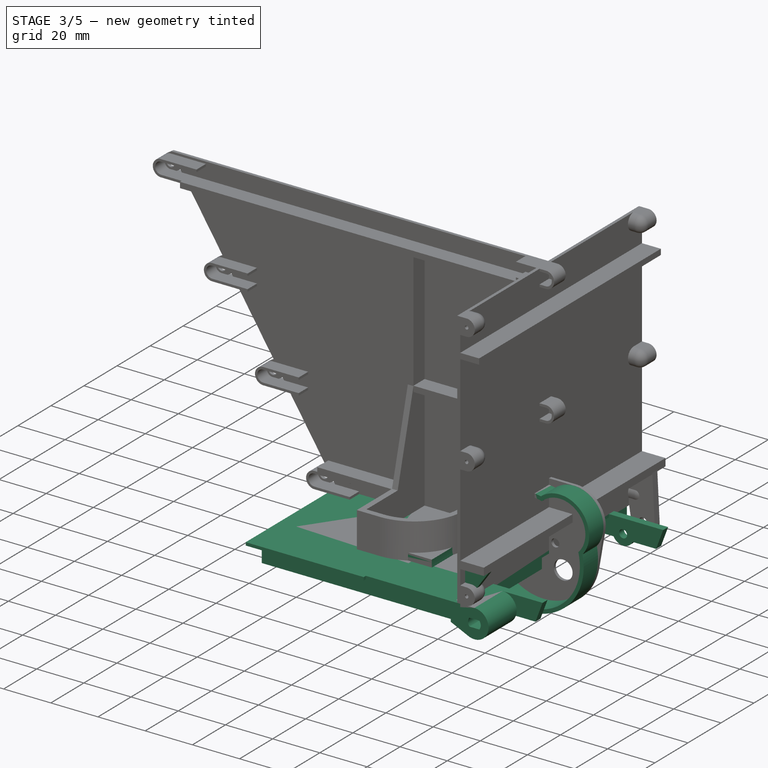
[diagram: stage 3 of 5 — iso view after this stage's code; geometry added in this stage tinted green]
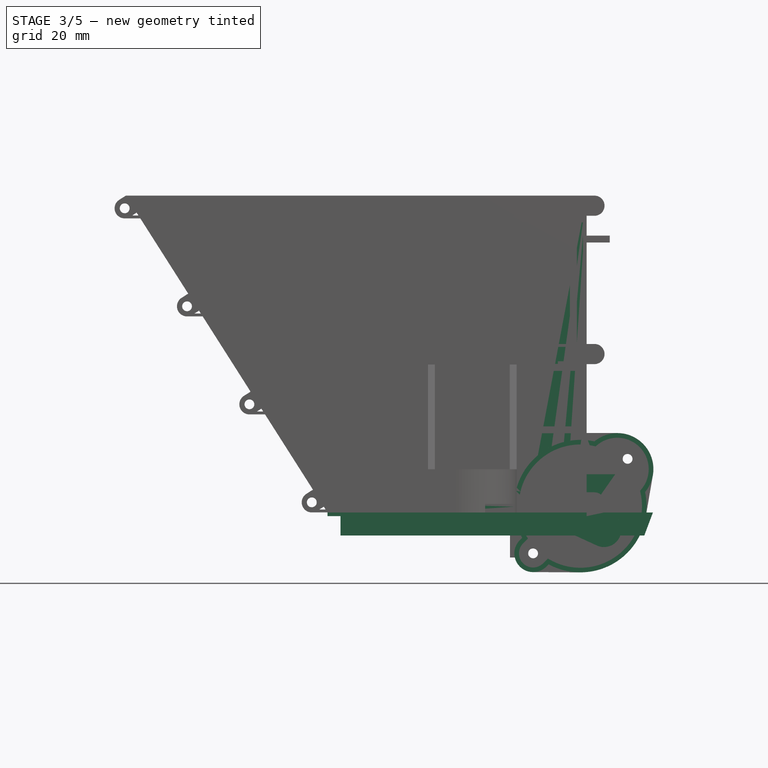
[diagram: stage 3 of 5 — front view after this stage's code; geometry added in this stage tinted green]
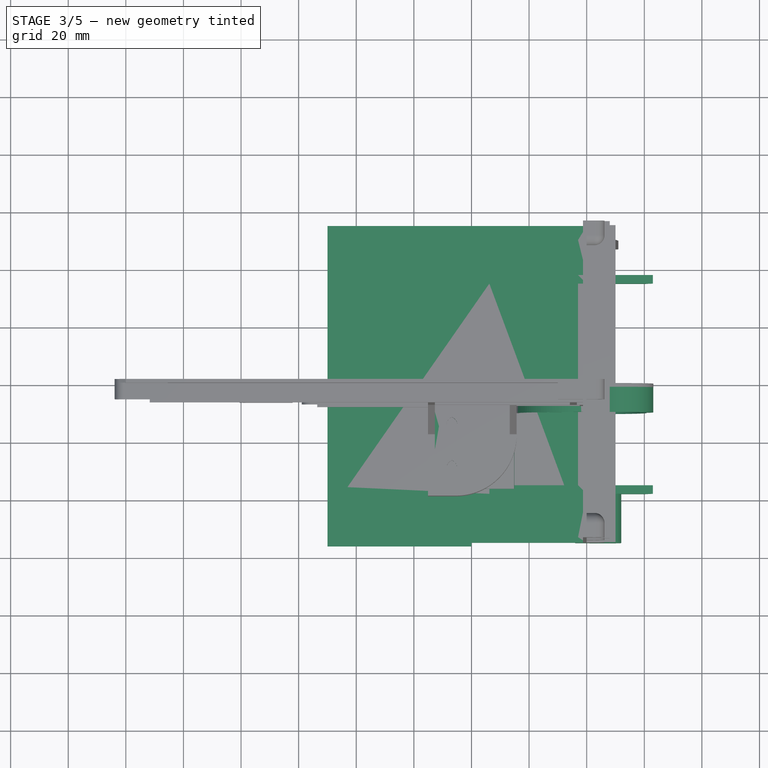
[diagram: stage 3 of 5 — top view after this stage's code; geometry added in this stage tinted green]
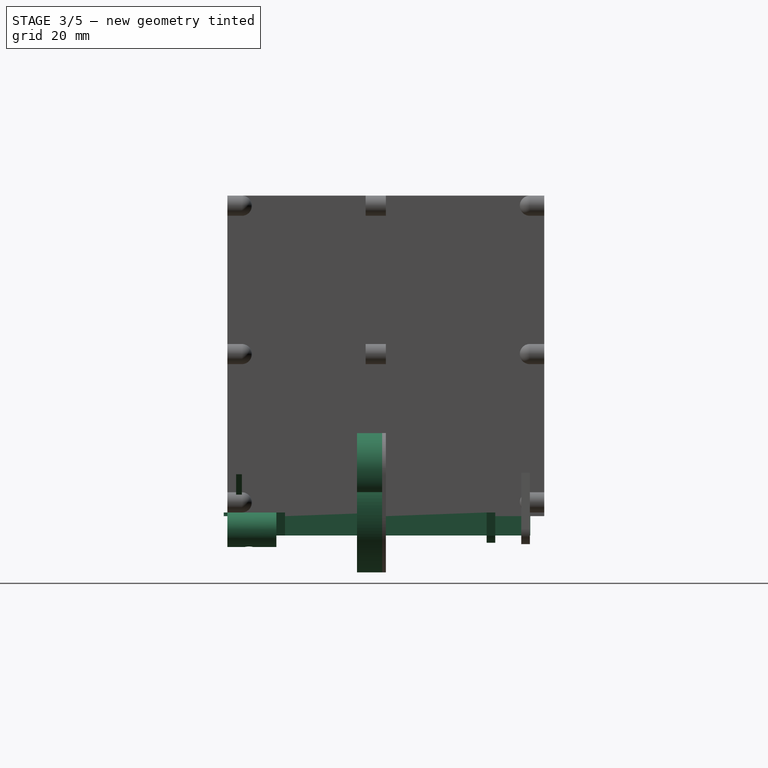
[diagram: stage 3 of 5 — right view after this stage's code; geometry added in this stage tinted green]
FEATURE [PartDesign::Body] Body003  label="Back"
  Group = -> [Sketch009,Pad006,Sketch010,Pad009,Revolution001,Sketch013,Pad010,Mirrored005,MultiTransform003,Mirrored006,Mirrored007,LinearPattern003]
  Origin = -> Origin004
  Placement = pos=(-90,0,0) rot=(0,-1,0;0.566729rad)
  Tip = -> MultiTransform003
  expr: .Placement.Rotation.Angle = -Spreadsheet.back_wall_bend
  expr: .Placement.Base.x = -Spreadsheet.bunker_hopperThroatLength
FEATURE [PartDesign::Pad] Pad011
  Direction = (1,1,1)
  Length = 1.28
  Length2 = 100
  Placement = pos=(0,0,0) rot=(1,0,0;1.5708rad)
  Profile = -> Sketch008
  Type = 0
  expr: Length = Spreadsheet.wall_thickness
FEATURE [Sketcher::SketchObject] Sketch014
  FullyConstrained = true
  MapMode = 5
  Placement = pos=(0,0,0) rot=(1,0,0;1.5708rad)
  Support = -> [XZ_Plane003]
  expr: Constraints[9] = Sketch008.Constraints[20]
  expr: Constraints[22] = Sketch008.Constraints[33]
  expr: Constraints[27] = Sketch008.Constraints[38]
  expr: Constraints[21] = Sketch008.Constraints[32]
  expr: Constraints[20] = Sketch008.Constraints[31]
  expr: Constraints[5] = Sketch008.Constraints[16]
  expr: Constraints[8] = Sketch008.Constraints[19]
  expr: Constraints[7] = Sketch008.Constraints[18]
  expr: Constraints[46] = Sketch008.Constraints[59]
  sketch-geometry (26):
    g0: ArcOfCircle CenterX=-2.20244 CenterY=2.20244 CenterZ=0 NormalX=0 NormalY=0 NormalZ=1 AngleXU=0 Radius=23 StartAngle=1.35702 EndAngle=3.64048
    g1: ArcOfCircle CenterX=10.6315 CenterY=15.0364 CenterZ=0 NormalX=0 NormalY=0 NormalZ=1 AngleXU=0 Radius=12.5 StartAngle=5.59342 EndAngle=8.54375
    g2: ArcOfCircle CenterX=-18.6073 CenterY=-14.2024 CenterZ=0 NormalX=0 NormalY=0 NormalZ=1 AngleXU=0 Radius=6.5 StartAngle=2.35619 EndAngle=5.49779
    g3: LineSegment StartX=-23.2035 StartY=-9.60623 StartZ=0 EndX=-22.3991 EndY=-8.80185 EndZ=0
    g4: LineSegment StartX=-14.0111 StartY=-18.7986 StartZ=0 EndX=-13.2067 EndY=-17.9942 EndZ=0
    g5: Circle CenterX=6 CenterY=-6 CenterZ=0 NormalX=0 NormalY=0 NormalZ=1 AngleXU=0 Radius=4
    g6: Circle CenterX=-18.6073 CenterY=-14.2024 CenterZ=0 NormalX=0 NormalY=0 NormalZ=1 AngleXU=0 Radius=1.7
    g7: Circle CenterX=14.2024 CenterY=18.6073 CenterZ=0 NormalX=0 NormalY=0 NormalZ=1 AngleXU=0 Radius=1.7
    g8: LineSegment StartX=14.2024 StartY=18.6073 StartZ=0 EndX=-2.20244 EndY=2.20244 EndZ=0
    g9: LineSegment StartX=-2.20244 StartY=2.20244 StartZ=0 EndX=-18.6073 EndY=-14.2024 EndZ=0
    g10: LineSegment StartX=-2.20244 StartY=2.20244 StartZ=0 EndX=6 EndY=-6 EndZ=0
    g11: GeomPoint X=19.4704 Y=23.8753 Z=0
    g12: ArcOfCircle CenterX=-2.20244 CenterY=2.20244 CenterZ=0 NormalX=0 NormalY=0 NormalZ=1 AngleXU=0 Radius=23 StartAngle=4.2135 EndAngle=6.49696
    g13: LineSegment StartX=-18.6073 StartY=-14.2024 StartZ=0 EndX=-18.6073 EndY=0 EndZ=0
    g14: LineSegment StartX=14.2024 StartY=18.6073 StartZ=0 EndX=0 EndY=18.6073 EndZ=0
    g15: LineSegment StartX=6 StartY=-6 StartZ=0 EndX=0 EndY=-6 EndZ=0
    g16: LineSegment StartX=6 StartY=-6 StartZ=0 EndX=6 EndY=0 EndZ=0
    g17: ArcOfCircle CenterX=-18.6073 CenterY=-14.2024 CenterZ=0 NormalX=0 NormalY=0 NormalZ=1 AngleXU=0 Radius=4.9 StartAngle=2.35619 EndAngle=5.49779
    g18: LineSegment StartX=-22.0721 StartY=-10.7376 StartZ=0 EndX=-20.3973 EndY=-9.06281 EndZ=0
    g19: LineSegment StartX=-15.1425 StartY=-17.6673 StartZ=0 EndX=-13.4677 EndY=-15.9925 EndZ=0
    g20: ArcOfCircle CenterX=-2.20244 CenterY=2.20244 CenterZ=0 NormalX=0 NormalY=0 NormalZ=1 AngleXU=0 Radius=21.4 StartAngle=1.31964 EndAngle=3.69597
    g21: ArcOfCircle CenterX=10.6315 CenterY=15.0364 CenterZ=0 NormalX=0 NormalY=0 NormalZ=1 AngleXU=0 Radius=10.9 StartAngle=5.52237 EndAngle=8.61479
    g22: ArcOfCircle CenterX=-2.20244 CenterY=2.20244 CenterZ=0 NormalX=0 NormalY=0 NormalZ=1 AngleXU=0 Radius=21.4 StartAngle=4.15801 EndAngle=6.53434
    g23: LineSegment StartX=3.1159 StartY=22.931 StartZ=0 EndX=2.01269 EndY=24.0899 EndZ=0
    g24: LineSegment StartX=3.1159 StartY=22.931 StartZ=0 EndX=3.51354 EndY=24.4809 EndZ=0
    g25: LineSegment StartX=-22.0721 StartY=-10.7376 StartZ=0 EndX=-23.2035 EndY=-9.60623 EndZ=0
  constraints (76):
    c: Coincident(g3,g2)
    c: Coincident(g4,g2)
    c: Parallel(g4,g3)
    c: Tangent(g3,g2)
    c: Tangent(g4,g2)
    c: Diameter(g1) = 25
    c: Coincident(g6,g2)
    c: Distance(g7,g2) = 46.4
    c: Distance(g5,g0) = 11.6
    c: Diameter(g0) = 46
    c: Coincident(g8,g7)
    c: Coincident(g8,g0)
    c: Coincident(g9,g0)
    c: Coincident(g9,g2)
    c: Coincident(g10,g0)
    c: Coincident(g10,g5)
    c: Perpendicular(g9,g10)
    c: Perpendicular(g8,g10)
    c: Equal(g8,g9)
    c: PointOnObject(g1,g8)
    c: Diameter(g2) = 13
    c: Diameter(g5) = 8
    c: Diameter(g6) = 3.4
    c: Equal(g6,g7)
    c: Parallel(g9,g4)
    c: PointOnObject(g11,g1)
    c: PointOnObject(g11,g8)
    c: Distance(g7,g11) = 7.45
    c: Coincident(g12,g1)
    c: Coincident(g0,g1)
    c: Equal(g0,g12)
    c: Coincident(g12,g4)
    c: Coincident(g0,g12)
    c: Coincident(g0,g3)
    c: Coincident(g13,g2)
    c: Vertical(g13)
    c: Coincident(g14,g7)
    c: Horizontal(g14)
    c: Equal(g14,g13)
    c: Coincident(g15,g5)
    c: PointOnObject(g15,g-2)
    c: Horizontal(g15)
    c: Coincident(g16,g5)
    c: PointOnObject(g16,g-1)
    c: Vertical(g16)
    c: Equal(g16,g15)
    c: Distance(g15) = 6
    c: PointOnObject(g13,g-1)
    c: PointOnObject(g14,g-2)
    c: Coincident(g18,g17)
    c: Coincident(g19,g17)
    c: Coincident(g20,g0)
    c: Coincident(g20,g18)
    c: Coincident(g21,g1)
    c: Coincident(g21,g20)
    c: Coincident(g22,g0)
    c: Coincident(g22,g19)
    c: Coincident(g22,g21)
    c: Coincident(g23,g20)
    c: PointOnObject(g23,g1)
    c: Perpendicular(g1,g23)
    c: Distance(g23) = 1.6
    c: Coincident(g24,g20)
    c: PointOnObject(g24,g0)
    c: Perpendicular(g0,g24)
    c: Equal(g24,g23)
    c: Equal(g22,g20)
    c: Tangent(g18,g17)
    c: Tangent(g19,g17)
    c: Parallel(g19,g18)
    c: Coincident(g17,g2)
    c: Coincident(g25,g17)
    c: PointOnObject(g25,g2)
    c: Perpendicular(g2,g25)
    c: Equal(g25,g23)
    c: Parallel(g19,g9)
FEATURE [PartDesign::Pad] Pad012
  BaseFeature = -> Pad011
  Direction = (1,1,1)
  Length = 10
  Length2 = 100
  Placement = pos=(0,0,0) rot=(1,0,0;1.5708rad)
  Profile = -> Sketch014
  Type = 0
FEATURE [Sketcher::SketchObject] Sketch015
  FullyConstrained = true
  MapMode = 5
  Placement = pos=(0,0,0) rot=(1,0,0;1.5708rad)
  Support = -> [XZ_Plane003]
  expr: Constraints[5] = Sketch014.Constraints[5]
  expr: Constraints[7] = Sketch014.Constraints[7]
  expr: Constraints[8] = Sketch014.Constraints[8]
  expr: Constraints[9] = Sketch014.Constraints[9]
  expr: Constraints[22] = Sketch014.Constraints[22]
  expr: Constraints[27] = Sketch014.Constraints[27]
  expr: Constraints[20] = Sketch014.Constraints[20]
  expr: Constraints[21] = Sketch014.Constraints[21]
  expr: Constraints[46] = Sketch014.Constraints[46]
  expr: Constraints[61] = Sketch014.Constraints[61]
  sketch-geometry (30):
    g0: ArcOfCircle CenterX=-2.20244 CenterY=2.20244 CenterZ=0 NormalX=0 NormalY=0 NormalZ=1 AngleXU=0 Radius=23 StartAngle=1.35702 EndAngle=3.64048
    g1: ArcOfCircle CenterX=10.6315 CenterY=15.0364 CenterZ=0 NormalX=0 NormalY=0 NormalZ=1 AngleXU=0 Radius=12.5 StartAngle=5.59342 EndAngle=8.54375
    g2: ArcOfCircle CenterX=-18.6073 CenterY=-14.2024 CenterZ=0 NormalX=0 NormalY=0 NormalZ=1 AngleXU=0 Radius=6.5 StartAngle=2.35619 EndAngle=5.49778
    g3: LineSegment StartX=-23.2035 StartY=-9.60624 StartZ=0 EndX=-22.3991 EndY=-8.80185 EndZ=0
    g4: LineSegment StartX=-14.0111 StartY=-18.7986 StartZ=0 EndX=-13.2067 EndY=-17.9942 EndZ=0
    g5: Circle CenterX=6 CenterY=-6 CenterZ=0 NormalX=0 NormalY=0 NormalZ=1 AngleXU=0 Radius=4
    g6: Circle CenterX=-18.6073 CenterY=-14.2024 CenterZ=0 NormalX=0 NormalY=0 NormalZ=1 AngleXU=0 Radius=1.7
    g7: Circle CenterX=14.2024 CenterY=18.6073 CenterZ=0 NormalX=0 NormalY=0 NormalZ=1 AngleXU=0 Radius=1.7
    g8: LineSegment StartX=14.2024 StartY=18.6073 StartZ=0 EndX=-2.20244 EndY=2.20244 EndZ=0
    g9: LineSegment StartX=-2.20244 StartY=2.20244 StartZ=0 EndX=-18.6073 EndY=-14.2024 EndZ=0
    g10: LineSegment StartX=-2.20244 StartY=2.20244 StartZ=0 EndX=6 EndY=-6 EndZ=0
    g11: GeomPoint X=19.4704 Y=23.8753 Z=0
    g12: ArcOfCircle CenterX=-2.20244 CenterY=2.20244 CenterZ=0 NormalX=0 NormalY=0 NormalZ=1 AngleXU=0 Radius=23 StartAngle=4.2135 EndAngle=6.49696
    g13: LineSegment StartX=-18.6073 StartY=-14.2024 StartZ=0 EndX=-18.6073 EndY=0 EndZ=0
    g14: LineSegment StartX=14.2024 StartY=18.6073 StartZ=0 EndX=0 EndY=18.6073 EndZ=0
    g15: LineSegment StartX=6 StartY=-6 StartZ=0 EndX=0 EndY=-6 EndZ=0
    g16: LineSegment StartX=6 StartY=-6 StartZ=0 EndX=6 EndY=0 EndZ=0
    g17: ArcOfCircle CenterX=-18.6073 CenterY=-14.2024 CenterZ=0 NormalX=0 NormalY=0 NormalZ=1 AngleXU=0 Radius=4.9 StartAngle=2.35619 EndAngle=5.49779
    g18: LineSegment StartX=-22.0721 StartY=-10.7376 StartZ=0 EndX=-20.3973 EndY=-9.06281 EndZ=0
    g19: LineSegment StartX=-15.1425 StartY=-17.6673 StartZ=0 EndX=-13.4677 EndY=-15.9925 EndZ=0
    g20: ArcOfCircle CenterX=-2.20244 CenterY=2.20244 CenterZ=0 NormalX=0 NormalY=0 NormalZ=1 AngleXU=0 Radius=21.4 StartAngle=1.31964 EndAngle=3.69597
    g21: ArcOfCircle CenterX=10.6315 CenterY=15.0364 CenterZ=0 NormalX=0 NormalY=0 NormalZ=1 AngleXU=0 Radius=10.9 StartAngle=5.52237 EndAngle=8.61479
    g22: ArcOfCircle CenterX=-2.20244 CenterY=2.20244 CenterZ=0 NormalX=0 NormalY=0 NormalZ=1 AngleXU=0 Radius=21.4 StartAngle=4.15801 EndAngle=6.53434
    g23: LineSegment StartX=3.1159 StartY=22.931 StartZ=0 EndX=2.01269 EndY=24.0899 EndZ=0
    g24: LineSegment StartX=3.1159 StartY=22.931 StartZ=0 EndX=3.51354 EndY=24.4809 EndZ=0
    g25: LineSegment StartX=-22.0721 StartY=-10.7376 StartZ=0 EndX=-23.2035 EndY=-9.60625 EndZ=0
    g26: ArcOfCircle CenterX=-2.20244 CenterY=2.20244 CenterZ=0 NormalX=0 NormalY=0 NormalZ=1 AngleXU=0 Radius=23 StartAngle=3.10691 EndAngle=3.2375
    g27: LineSegment StartX=-25.1886 StartY=3 StartZ=0 EndX=-55.0967 EndY=3 EndZ=0
    g28: LineSegment StartX=-55.0967 StartY=3 StartZ=0 EndX=-55.0967 EndY=0 EndZ=0
    g29: LineSegment StartX=-55.0967 StartY=0 StartZ=0 EndX=-25.0967 EndY=-2.7e-15 EndZ=0
  constraints (88):
    c: Coincident(g3,g2)
    c: Coincident(g4,g2)
    c: Parallel(g4,g3)
    c: Tangent(g3,g2)
    c: Tangent(g4,g2)
    c: Diameter(g1) = 25
    c: Coincident(g6,g2)
    c: Distance(g7,g2) = 46.4
    c: Distance(g5,g0) = 11.6
    c: Diameter(g0) = 46
    c: Coincident(g8,g7)
    c: Coincident(g8,g0)
    c: Coincident(g9,g0)
    c: Coincident(g9,g2)
    c: Coincident(g10,g0)
    c: Coincident(g10,g5)
    c: Perpendicular(g9,g10)
    c: Perpendicular(g8,g10)
    c: Equal(g8,g9)
    c: PointOnObject(g1,g8)
    c: Diameter(g2) = 13
    c: Diameter(g5) = 8
    c: Diameter(g6) = 3.4
    c: Equal(g6,g7)
    c: Parallel(g9,g4)
    c: PointOnObject(g11,g1)
    c: PointOnObject(g11,g8)
    c: Distance(g7,g11) = 7.45
    c: Coincident(g12,g1)
    c: Coincident(g0,g1)
    c: Equal(g0,g12)
    c: Coincident(g12,g4)
    c: Coincident(g0,g12)
    c: Coincident(g0,g3)
    c: Coincident(g13,g2)
    c: Vertical(g13)
    c: Coincident(g14,g7)
    c: Horizontal(g14)
    c: Equal(g14,g13)
    c: Coincident(g15,g5)
    c: PointOnObject(g15,g-2)
    c: Horizontal(g15)
    c: Coincident(g16,g5)
    c: PointOnObject(g16,g-1)
    c: Vertical(g16)
    c: Equal(g16,g15)
    c: Distance(g15) = 6
    c: PointOnObject(g13,g-1)
    c: PointOnObject(g14,g-2)
    c: Coincident(g18,g17)
    c: Coincident(g19,g17)
    c: Coincident(g20,g0)
    c: Coincident(g20,g18)
    c: Coincident(g21,g1)
    c: Coincident(g21,g20)
    c: Coincident(g22,g0)
    c: Coincident(g22,g19)
    c: Coincident(g22,g21)
    c: Coincident(g23,g20)
    c: PointOnObject(g23,g1)
    c: Perpendicular(g1,g23)
    c: Distance(g23) = 1.6
    c: Coincident(g24,g20)
    c: PointOnObject(g24,g0)
    c: Perpendicular(g0,g24)
    c: Equal(g24,g23)
    c: Equal(g22,g20)
    c: Tangent(g18,g17)
    c: Tangent(g19,g17)
    c: Parallel(g19,g18)
    c: Coincident(g17,g2)
    c: Coincident(g25,g17)
    c: PointOnObject(g25,g2)
    c: Perpendicular(g2,g25)
    c: Equal(g25,g23)
    c: Parallel(g19,g9)
    c: Coincident(g26,g0)
    c: PointOnObject(g26,g-1)
    c: PointOnObject(g26,g0)
    c: Coincident(g27,g26)
    c: Horizontal(g27)
    c: Coincident(g28,g27)
    c: PointOnObject(g28,g-1)
    c: Vertical(g28)
    c: Coincident(g29,g28)
    c: Coincident(g29,g26)
    c: Distance(g28) = 3
    c: Distance(g29) = 30
FEATURE [PartDesign::Pad] Pad013
  BaseFeature = -> Pad012
  Direction = (1,1,1)
  Length = 36.28
  Length2 = 100
  Placement = pos=(0,0,0) rot=(1,0,0;1.5708rad)
  Profile = -> Sketch015
  Type = 0
  expr: Length = 13 + 15 + 7 + Spreadsheet.wall_thickness
FEATURE [Sketcher::SketchObject] Sketch016
  FullyConstrained = true
  MapMode = 5
  Support = -> [XY_Plane005]
  expr: Constraints[9] = Spreadsheet.bunker_width
  expr: Constraints[17] = Spreadsheet.wall_thickness
  expr: Constraints[19] = Spreadsheet.bunker_hopperThroatLength
  sketch-geometry (7):
    g0: LineSegment StartX=-90 StartY=-56.28 StartZ=0 EndX=-90 EndY=55 EndZ=0
    g1: LineSegment StartX=-90 StartY=55 StartZ=0 EndX=0 EndY=55 EndZ=0
    g2: LineSegment StartX=0 StartY=-55 StartZ=0 EndX=0 EndY=0 EndZ=0
    g3: LineSegment StartX=0 StartY=0 StartZ=0 EndX=0 EndY=55 EndZ=0
    g4: LineSegment StartX=-90 StartY=-56.28 StartZ=0 EndX=-40 EndY=-56.28 EndZ=0
    g5: LineSegment StartX=-40 StartY=-56.28 StartZ=0 EndX=-40 EndY=-55 EndZ=0
    g6: LineSegment StartX=-40 StartY=-55 StartZ=0 EndX=0 EndY=-55 EndZ=0
  constraints (20):
    c: Coincident(g0,g1)
    c: Horizontal(g1)
    c: Vertical(g0)
    c: PointOnObject(g2,g-2)
    c: Coincident(g2,g-1)
    c: Coincident(g3,g2)
    c: Coincident(g3,g1)
    c: Vertical(g3)
    c: Equal(g2,g3)
    c: Distance(g2,g1) = 110
    c: Coincident(g4,g0)
    c: Horizontal(g4)
    c: Coincident(g5,g4)
    c: Coincident(g6,g5)
    c: Coincident(g6,g2)
    c: Horizontal(g6)
    c: Vertical(g5)
    c: Distance(g5) = 1.28
    c: Distance(g6) = 40
    c: Distance(g2,g0) = 90
FEATURE [PartDesign::Pad] Pad014
  Direction = (1,1,1)
  Length = 1.28
  Length2 = 100
  Profile = -> Sketch016
  Reversed = true
  Type = 0
  expr: Length = Spreadsheet.wall_thickness
FEATURE [Sketcher::SketchObject] Sketch017
  FullyConstrained = true
  MapMode = 5
  Placement = pos=(0,-55,0) rot=(1,0,0;1.5708rad)
  Support = -> [Pad014]
  expr: Constraints[18] = Spreadsheet.wall_thickness * 0 + 8
  expr: Constraints[20] = 12
  sketch-geometry (13):
    g0: ArcOfCircle CenterX=6 CenterY=-6 CenterZ=0 NormalX=0 NormalY=0 NormalZ=1 AngleXU=0 Radius=2.7 StartAngle=2.46052 EndAngle=3.82267
    g1: LineSegment StartX=6 StartY=-6 StartZ=0 EndX=0 EndY=-6 EndZ=0
    g2: LineSegment StartX=6 StartY=-6 StartZ=0 EndX=6 EndY=0 EndZ=0
    g3: ArcOfCircle CenterX=6 CenterY=-6 CenterZ=0 NormalX=0 NormalY=0 NormalZ=1 AngleXU=0 Radius=6 StartAngle=4.28078 EndAngle=7.85398
    g4: LineSegment StartX=6 StartY=0 StartZ=0 EndX=0 EndY=0 EndZ=0
    g5: LineSegment StartX=3.48998 StartY=-11.4498 StartZ=0 EndX=-4 EndY=-8 EndZ=0
    g6: LineSegment StartX=-4 StartY=-8 StartZ=0 EndX=-4 EndY=0 EndZ=0
    g7: LineSegment StartX=-4 StartY=0 StartZ=0 EndX=0 EndY=0 EndZ=0
    g8: LineSegment StartX=3.90238 StartY=-4.3 StartZ=0 EndX=8.09762 EndY=-4.3 EndZ=0
    g9: LineSegment StartX=3.90238 StartY=-7.7 StartZ=0 EndX=8.09762 EndY=-7.7 EndZ=0
    g10: LineSegment StartX=3.90238 StartY=-4.3 StartZ=0 EndX=3.90238 EndY=-6 EndZ=0
    g11: LineSegment StartX=3.90238 StartY=-6 StartZ=0 EndX=3.90238 EndY=-7.7 EndZ=0
    g12: ArcOfCircle CenterX=6 CenterY=-6 CenterZ=0 NormalX=0 NormalY=0 NormalZ=1 AngleXU=0 Radius=2.7 StartAngle=5.60211 EndAngle=6.96426
  constraints (38):
    c: Coincident(g1,g0)
    c: PointOnObject(g1,g-2)
    c: Horizontal(g1)
    c: Coincident(g2,g0)
    c: PointOnObject(g2,g-1)
    c: Vertical(g2)
    c: Equal(g2,g1)
    c: Distance(g1) = 6
    c: Coincident(g3,g0)
    c: Coincident(g4,g3)
    c: Coincident(g4,g-1)
    c: Tangent(g3,g4)
    c: Coincident(g5,g3)
    c: Coincident(g6,g5)
    c: Vertical(g6)
    c: Coincident(g7,g6)
    c: Coincident(g7,g4)
    c: Horizontal(g7)
    c: Distance(g6) = 8
    c: Diameter(g0) = 5.4
    c: Diameter(g3) = 12
    c: Distance(g7) = 4
    c: Tangent(g3,g5)
    c: Horizontal(g8)
    c: Horizontal(g9)
    c: Coincident(g10,g8)
    c: PointOnObject(g10,g1)
    c: Vertical(g10)
    c: Coincident(g11,g10)
    c: Coincident(g11,g9)
    c: Vertical(g11)
    c: Distance(g9,g8) = 3.4
    c: Coincident(g12,g8)
    c: Coincident(g0,g8)
    c: Equal(g0,g12)
    c: Coincident(g0,g9)
    c: Coincident(g12,g9)
    c: Coincident(g0,g12)
FEATURE [PartDesign::Pad] Pad015
  BaseFeature = -> Pad014
  Direction = (1,1,1)
  Length = 17
  Length2 = 100
  Profile = -> Sketch017
  Reversed = true
  Type = 0
FEATURE [Sketcher::SketchObject] Sketch018
  FullyConstrained = false
  MapMode = 5
  Support = -> [XY_Plane005]
  sketch-geometry (16):
    g0: LineSegment StartX=-5.4 StartY=-50.6424 StartZ=0 EndX=-83.0657 EndY=-50.6424 EndZ=0
    g1: LineSegment StartX=-83.0657 StartY=-50.6424 StartZ=0 EndX=-83.0657 EndY=-38.0752 EndZ=0
    g2: LineSegment StartX=-83.0657 StartY=47.7431 StartZ=0 EndX=-5.4 EndY=47.7431 EndZ=0
    g3: LineSegment StartX=-5.4 StartY=47.7431 StartZ=0 EndX=-5.4 EndY=-35.6752 EndZ=0
    g4: LineSegment StartX=-3 StartY=-53.0424 StartZ=0 EndX=-85.4657 EndY=-53.0424 EndZ=0
    g5: LineSegment StartX=-85.4657 StartY=-53.0424 StartZ=0 EndX=-85.4657 EndY=50.1431 EndZ=0
    g6: LineSegment StartX=-85.4657 StartY=50.1431 StartZ=0 EndX=-3 EndY=50.1431 EndZ=0
    g7: LineSegment StartX=-3 StartY=50.1431 StartZ=0 EndX=-3 EndY=-53.0424 EndZ=0
    g8: LineSegment StartX=-36.2865 StartY=47.7431 StartZ=0 EndX=-36.2865 EndY=50.1431 EndZ=0
    g9: LineSegment StartX=-83.0657 StartY=22.5727 StartZ=0 EndX=-85.4657 EndY=22.5727 EndZ=0
    g10: LineSegment StartX=-5.4 StartY=25.2177 StartZ=0 EndX=-3 EndY=25.2177 EndZ=0
    g11: LineSegment StartX=-37.756 StartY=-50.6424 StartZ=0 EndX=-37.756 EndY=-53.0424 EndZ=0
    g12: LineSegment StartX=-5.4 StartY=-38.0752 StartZ=0 EndX=-5.4 EndY=-50.6424 EndZ=0
    g13: LineSegment StartX=-83.0657 StartY=-35.6752 StartZ=0 EndX=-83.0657 EndY=47.7431 EndZ=0
    g14: LineSegment StartX=-83.0657 StartY=-38.0752 StartZ=0 EndX=-83.0657 EndY=-35.6752 EndZ=0
    g15: LineSegment StartX=-5.4 StartY=-38.0752 StartZ=0 EndX=-5.4 EndY=-35.6752 EndZ=0
  constraints (39):
    c: Coincident(g0,g1)
    c: Coincident(g13,g2)
    c: Coincident(g2,g3)
    c: Coincident(g12,g0)
    c: Horizontal(g0)
    c: Horizontal(g2)
    c: Vertical(g1)
    c: Vertical(g3)
    c: Coincident(g4,g5)
    c: Coincident(g5,g6)
    c: Coincident(g6,g7)
    c: Coincident(g7,g4)
    c: Horizontal(g4)
    c: Horizontal(g6)
    c: Vertical(g5)
    c: Vertical(g7)
    c: PointOnObject(g8,g2)
    c: PointOnObject(g8,g6)
    c: Vertical(g8)
    c: PointOnObject(g9,g1)
    c: PointOnObject(g9,g5)
    c: Horizontal(g9)
    c: PointOnObject(g10,g3)
    c: PointOnObject(g10,g7)
    c: Horizontal(g10)
    c: PointOnObject(g11,g0)
    c: PointOnObject(g11,g4)
    c: Equal(g10,g8)
    c: Equal(g8,g9)
    c: Equal(g9,g11)
    c: Distance(g11) = 2.4
    c: Tangent(g3,g12)
    c: Tangent(g1,g13)
    c: Perpendicular(g0,g11)
    c: Coincident(g14,g1)
    c: Equal(g11,g14)
    c: Distance(g-1,g7) = 3
    c: Coincident(g15,g12)
    c: Coincident(g15,g3)
FEATURE [PartDesign::Pad] Pad016
  BaseFeature = -> Pad015
  Direction = (1,1,1)
  Length = 8
  Length2 = 100
  Profile = -> Sketch018
  Reversed = true
  Type = 0
FEATURE [Sketcher::SketchObject] Sketch019
  ExternalGeometry = -> [Pad013]
  FullyConstrained = true
  MapMode = 5
  Placement = pos=(0,0,-5e-15) rot=(1,0,0;3.14159rad)
  Support = -> [Pad013]
  expr: Constraints[7] = Spreadsheet.wall_thickness + 13
  sketch-geometry (4):
    g0: Circle CenterX=-48.0967 CenterY=29.28 CenterZ=0 NormalX=0 NormalY=0 NormalZ=1 AngleXU=0 Radius=3.2
    g1: Circle CenterX=-48.0967 CenterY=14.28 CenterZ=0 NormalX=0 NormalY=0 NormalZ=1 AngleXU=0 Radius=3.2
    g2: LineSegment StartX=-48.0967 StartY=29.28 StartZ=0 EndX=-55.0967 EndY=29.28 EndZ=0
    g3: LineSegment StartX=-48.0967 StartY=14.28 StartZ=0 EndX=-25.0967 EndY=14.28 EndZ=0
  constraints (12):
    c: Distance(g1,g0) = 15
    c: Coincident(g2,g0)
    c: Horizontal(g2)
    c: Coincident(g3,g1)
    c: Horizontal(g3)
    c: Diameter(g1) = 6.4
    c: Equal(g1,g0)
    c: Distance(g1,g-1) = 14.28
    c: PointOnObject(g2,g-4)
    c: PointOnObject(g3,g-3)
    c: Vertical(g1,g0)
    c: Distance(g2) = 7
FEATURE [PartDesign::Pocket] Pocket001
  BaseFeature = -> Pad013
  Length = 10
  Length2 = 100
  Placement = pos=(0,0,0) rot=(1,0,0;1.5708rad)
  Profile = -> Sketch019
  Type = 1
FEATURE [Sketcher::SketchObject] Sketch024
  AttachmentOffset = pos=(0,0,35) rot=(0,0,1;0rad)
  FullyConstrained = true
  MapMode = 5
  Placement = pos=(0,-35,-7.8e-15) rot=(1,0,0;1.5708rad)
  Support = -> [XZ_Plane005]
  sketch-geometry (4):
    g0: LineSegment StartX=23 StartY=0 StartZ=0 EndX=-3 EndY=0 EndZ=0
    g1: LineSegment StartX=-3 StartY=0 StartZ=0 EndX=-3 EndY=-8 EndZ=0
    g2: LineSegment StartX=-3 StartY=-8 StartZ=0 EndX=20 EndY=-8 EndZ=0
    g3: LineSegment StartX=20 StartY=-8 StartZ=0 EndX=23 EndY=-9e-16 EndZ=0
  constraints (12):
    c: Coincident(g0,g1)
    c: Coincident(g1,g2)
    c: Horizontal(g0)
    c: Horizontal(g2)
    c: Vertical(g1)
    c: PointOnObject(g0,g-1)
    c: Distance(g-1,g0) = 3
    c: Distance(g1) = 8
    c: Coincident(g3,g2)
    c: Coincident(g0,g3)
    c: Distance(g0) = 26
    c: Distance(g2) = 23
FEATURE [PartDesign::Pad] Pad020
  BaseFeature = -> Pad016
  Direction = (1,1,1)
  Length = 3
  Length2 = 100
  Profile = -> Sketch024
  Type = 0
FEATURE [Sketcher::SketchObject] Sketch025
  FullyConstrained = false
  MapMode = 5
  Support = -> [XY_Plane005]
  sketch-geometry (7):
    g0: LineSegment StartX=56.2764 StartY=-26.7973 StartZ=0 EndX=-8.9538 EndY=-26.7973 EndZ=0
    g1: LineSegment StartX=-109.135 StartY=-21.6214 StartZ=0 EndX=-109.135 EndY=69.7235 EndZ=0
    g2: LineSegment StartX=-109.135 StartY=69.7235 StartZ=0 EndX=56.2764 EndY=69.7235 EndZ=0
    g3: LineSegment StartX=56.2764 StartY=69.7235 StartZ=0 EndX=56.2764 EndY=-26.7973 EndZ=0
    g4: LineSegment StartX=-8.9538 StartY=-89.5111 StartZ=0 EndX=-109.135 EndY=-89.5111 EndZ=0
    g5: LineSegment StartX=-109.135 StartY=-89.5111 StartZ=0 EndX=-109.135 EndY=-21.6214 EndZ=0
    g6: LineSegment StartX=-8.9538 StartY=-26.7973 StartZ=0 EndX=-8.9538 EndY=-89.5111 EndZ=0
  constraints (14):
    c: Coincident(g1,g2)
    c: Coincident(g2,g3)
    c: Coincident(g3,g0)
    c: Horizontal(g0)
    c: Horizontal(g2)
    c: Vertical(g1)
    c: Vertical(g3)
    c: Coincident(g4,g5)
    c: Coincident(g6,g4)
    c: Horizontal(g4)
    c: Vertical(g5)
    c: Vertical(g6)
    c: Coincident(g5,g1)
    c: Coincident(g6,g0)
FEATURE [PartDesign::Mirrored] Mirrored008
  MirrorPlane = -> Pad020 [Face38]
FEATURE [PartDesign::Mirrored] Mirrored009
  MirrorPlane = -> XZ_Plane005
FEATURE [PartDesign::MultiTransform] MultiTransform004
  BaseFeature = -> Pad020
  Originals = -> [Pad020]
  Transformations = -> [Mirrored008,Mirrored009]
FEATURE [Sketcher::SketchObject] Sketch026
  ExternalGeometry = -> [MultiTransform004]
  FullyConstrained = true
  MapMode = 5
  Placement = pos=(0,-1.7e-15,-7.7) rot=(0,0,1;0rad)
  Support = -> [MultiTransform004]
  sketch-geometry (3):
    g0: Circle CenterX=6 CenterY=-47.5 CenterZ=0 NormalX=0 NormalY=0 NormalZ=1 AngleXU=0 Radius=1.5
    g1: LineSegment StartX=3.90238 StartY=-55 StartZ=0 EndX=6 EndY=-47.5 EndZ=0
    g2: LineSegment StartX=8.09762 StartY=-55 StartZ=0 EndX=6 EndY=-47.5 EndZ=0
  constraints (7):
    c: Diameter(g0) = 3
    c: Coincident(g1,g-3)
    c: Coincident(g1,g0)
    c: Coincident(g2,g-3)
    c: Coincident(g2,g0)
    c: Equal(g2,g1)
    c: Distance(g0,g-3) = 7.5
FEATURE [PartDesign::Pocket] Pocket002
  BaseFeature = -> MultiTransform004
  Length = 5
  Length2 = 100
  Profile = -> Sketch026
  Type = 1
FEATURE [PartDesign::Pad] Pad021
  BaseFeature = -> Pocket002
  Direction = (1,1,1)
  Length = 5
  Length2 = 100
  Profile = -> MultiTransform004 [Face58]
  Type = 0
FEATURE [PartDesign::Pad] Pad022
  BaseFeature = -> Pad021
  Direction = (1,1,1)
  Length = 4
  Length2 = 100
  Profile = -> Pad021 [Face71]
  Type = 0
FEATURE [PartDesign::Body] Body002  label="Left"
  Group = -> [Sketch008,Pad011,Sketch014,Pad012,Sketch015,Pad013,Sketch019,Pocket001,Sketch020,Pad017,Sketch021,Pad018,Sketch022,Pad019,Sketch027,Pad023,MultiTransform005,Mirrored010,DatumPlane,LinearPattern004,Sketch028,Pad024,DatumLine,MultiTransform006,Mirrored011,LinearPattern005,MultiTransform007,Mirrored012,LinearPattern006,Sketch029,Pad025,Sketch030,Pad026,Pocket003,Revolution002,LinearPattern007,+5 more]
  Origin = -> Origin003
  Placement = pos=(0,-55,0) rot=(0,0,1;0rad)
  Tip = -> Pad028
  expr: .Placement.Base.y = -Spreadsheet.bunker_width / 2
FEATURE [Sketcher::SketchObject] Sketch033
  AttachmentOffset = pos=(0,0,-35) rot=(0,0,1;0rad)
  FullyConstrained = true
  MapMode = 5
  Placement = pos=(0,35,7.8e-15) rot=(1,0,0;1.5708rad)
  Support = -> [XZ_Plane005]
  sketch-geometry (1):
    g0: Circle CenterX=6 CenterY=-6 CenterZ=0 NormalX=0 NormalY=0 NormalZ=1 AngleXU=0 Radius=4.5
  constraints (3):
    c: DistanceX(g0) = 6
    c: DistanceY(g0) = -6
    c: Diameter(g0) = 9
FEATURE [PartDesign::Pad] Pad029
  BaseFeature = -> Pad022
  Direction = (1,1,1)
  Length = 3
  Length2 = 100
  Profile = -> Sketch033
  Reversed = true
  Type = 0
FEATURE [Sketcher::SketchObject] Sketch034
  FullyConstrained = true
  MapMode = 5
  Placement = pos=(0,0,0) rot=(1,0,0;1.5708rad)
  Support = -> [XZ_Plane005]
  sketch-geometry (1):
    g0: Circle CenterX=6 CenterY=-6 CenterZ=0 NormalX=0 NormalY=0 NormalZ=1 AngleXU=0 Radius=1.7
  constraints (3):
    c: DistanceX(g0) = 6
    c: DistanceY(g0) = -6
    c: Diameter(g0) = 3.4
FEATURE [PartDesign::Pocket] Pocket005
  BaseFeature = -> Pad029
  Length = 5
  Length2 = 100
  Profile = -> Sketch034
  Type = 1
FEATURE [Sketcher::SketchObject] Sketch036
  AttachmentOffset = pos=(0,0,50) rot=(0,0,1;0rad)
  FullyConstrained = false
  MapMode = 5
  Placement = pos=(0,-50,-1.11e-14) rot=(1,0,0;1.5708rad)
  Support = -> [XZ_Plane002]
  sketch-geometry (4):
    g0: LineSegment StartX=0 StartY=6.10793 StartZ=0 EndX=0 EndY=13.4 EndZ=0
    g1: LineSegment StartX=0 StartY=13.4 StartZ=0 EndX=10 EndY=13.4 EndZ=0
    g2: LineSegment StartX=10 StartY=13.4 StartZ=0 EndX=4.88456 EndY=6.10793 EndZ=0
    g3: LineSegment StartX=4.88456 StartY=6.10793 StartZ=0 EndX=0 EndY=6.10793 EndZ=0
  constraints (10):
    c: PointOnObject(g0,g-2)
    c: PointOnObject(g0,g-2)
    c: Coincident(g0,g1)
    c: Horizontal(g1)
    c: Coincident(g1,g2)
    c: Coincident(g2,g3)
    c: Coincident(g3,g0)
    c: Horizontal(g3)
    c: Distance(g1) = 10
    c: Distance(g0,g-1) = 13.4
FEATURE [PartDesign::Pad] Pad031
  BaseFeature = -> Pad030
  Direction = (1,1,1)
  Length = 2
  Length2 = 100
  Placement = pos=(0,0,0) rot=(0.57735,0.57735,0.57735;2.0944rad)
  Profile = -> Sketch036
  Type = 0
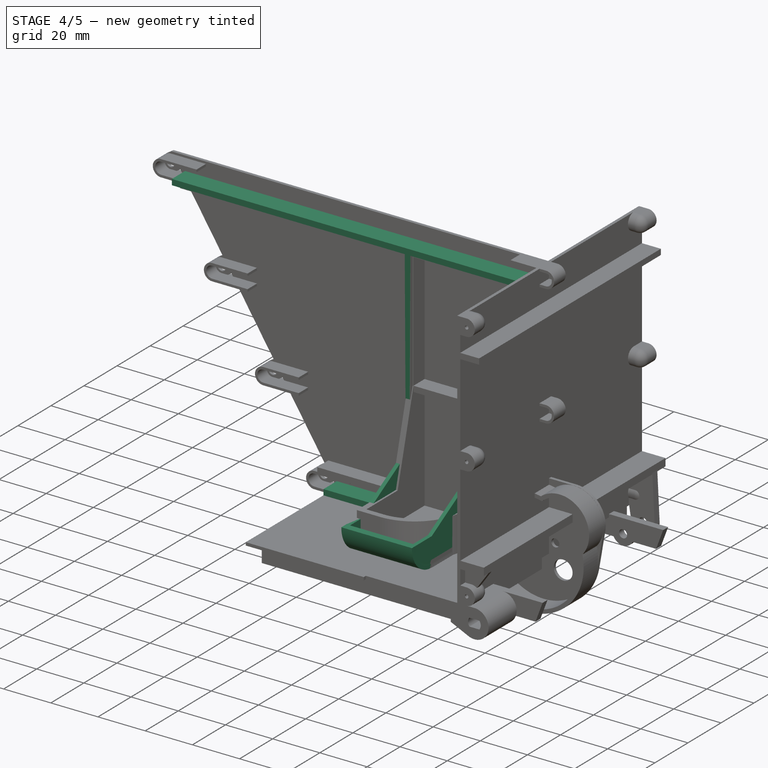
[diagram: stage 4 of 5 — iso view after this stage's code; geometry added in this stage tinted green]
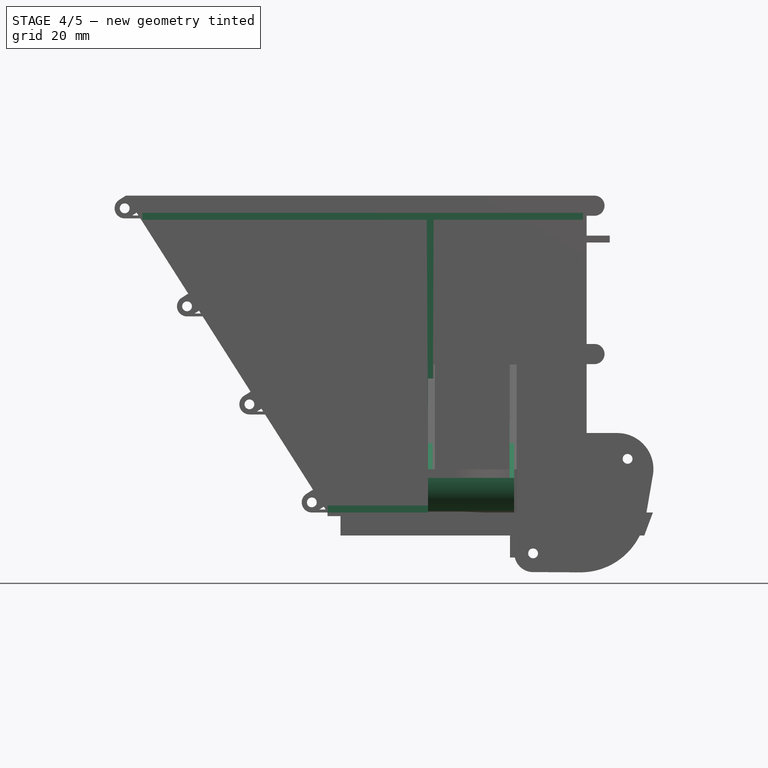
[diagram: stage 4 of 5 — front view after this stage's code; geometry added in this stage tinted green]
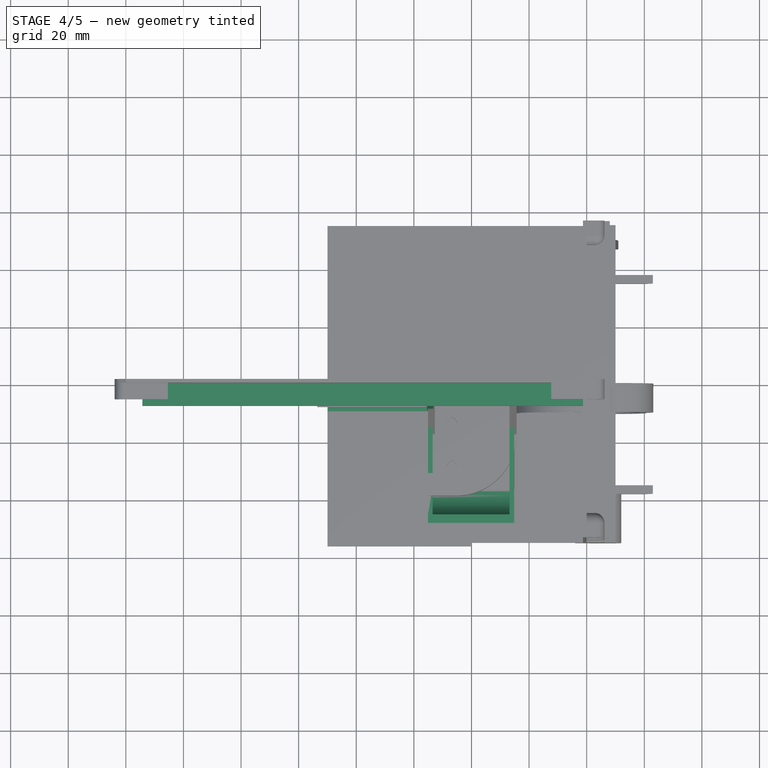
[diagram: stage 4 of 5 — top view after this stage's code; geometry added in this stage tinted green]
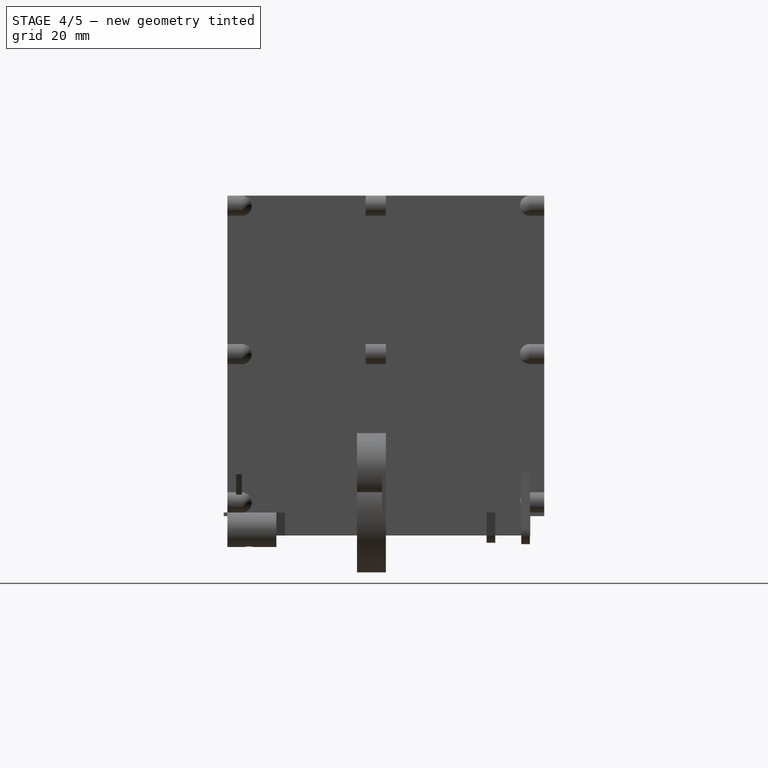
[diagram: stage 4 of 5 — right view after this stage's code; geometry added in this stage tinted green]
FEATURE [Sketcher::SketchObject] Sketch020
  FullyConstrained = false
  MapMode = 5
  Placement = pos=(0,-1.28,0) rot=(1,0,0;1.5708rad)
  sketch-geometry (8):
    g0: LineSegment StartX=-52.754 StartY=0 StartZ=0 EndX=-89.9566 EndY=0 EndZ=0
    g1: LineSegment StartX=-89.9566 StartY=0 StartZ=0 EndX=-89.9566 EndY=2.4 EndZ=0
    g2: LineSegment StartX=-89.9566 StartY=2.4 StartZ=0 EndX=-52.754 EndY=2.4 EndZ=0
    g3: LineSegment StartX=-52.754 StartY=2.4 StartZ=0 EndX=-52.754 EndY=0 EndZ=0
    g4: LineSegment StartX=-154.235 StartY=101.615 StartZ=0 EndX=-154.235 EndY=104.015 EndZ=0
    g5: LineSegment StartX=-154.235 StartY=104.015 StartZ=0 EndX=0 EndY=104.015 EndZ=0
    g6: LineSegment StartX=0 StartY=104.015 StartZ=0 EndX=0 EndY=101.615 EndZ=0
    g7: LineSegment StartX=0 StartY=101.615 StartZ=0 EndX=-154.235 EndY=101.615 EndZ=0
  constraints (19):
    c: Coincident(g0,g1)
    c: Coincident(g1,g2)
    c: Coincident(g2,g3)
    c: Coincident(g3,g0)
    c: Horizontal(g0)
    c: Horizontal(g2)
    c: Vertical(g1)
    c: Vertical(g3)
    c: PointOnObject(g0,g-1)
    c: Distance(g1) = 2.4
    c: Coincident(g7,g4)
    c: Coincident(g4,g5)
    c: Coincident(g5,g6)
    c: Horizontal(g5)
    c: Vertical(g4)
    c: Vertical(g6)
    c: PointOnObject(g6,g-2)
    c: Distance(g6) = 2.4
    c: Coincident(g6,g7)
FEATURE [PartDesign::Pad] Pad017
  BaseFeature = -> Pocket001
  Direction = (1,1,1)
  Length = 8
  Length2 = 100
  Placement = pos=(0,0,0) rot=(1,0,0;1.5708rad)
  Profile = -> Sketch020
  Type = 0
FEATURE [Sketcher::SketchObject] Sketch021
  FullyConstrained = true
  MapMode = 5
  Placement = pos=(0,0,0) rot=(1,0,0;1.5708rad)
  Support = -> [XZ_Plane003]
  expr: Constraints[12] = Spreadsheet.fixture_outerDiameter
  expr: Constraints[13] = Spreadsheet.fixture_frontDiameter
  expr: Constraints[15] = Spreadsheet.fixture_offsetDiameter
  expr: Constraints[18] = Spreadsheet.bunker_height
  sketch-geometry (6):
    g0: ArcOfCircle CenterX=2.7 CenterY=106.5 CenterZ=0 NormalX=0 NormalY=0 NormalZ=1 AngleXU=0 Radius=1.7 StartAngle=-8e-15 EndAngle=3.14159
    g1: ArcOfCircle CenterX=2.7 CenterY=106.5 CenterZ=0 NormalX=0 NormalY=0 NormalZ=1 AngleXU=0 Radius=3.5 StartAngle=-3.6e-15 EndAngle=1.5708
    g2: LineSegment StartX=2.69998 StartY=110 StartZ=0 EndX=0 EndY=110 EndZ=0
    g3: LineSegment StartX=0 StartY=110 StartZ=0 EndX=0 EndY=106.5 EndZ=0
    g4: LineSegment StartX=0 StartY=106.5 StartZ=0 EndX=1 EndY=106.5 EndZ=0
    g5: LineSegment StartX=4.4 StartY=106.5 StartZ=0 EndX=6.2 EndY=106.5 EndZ=0
  constraints (19):
    c: Coincident(g1,g0)
    c: Coincident(g2,g1)
    c: PointOnObject(g2,g-2)
    c: Horizontal(g2)
    c: Coincident(g3,g2)
    c: PointOnObject(g3,g-2)
    c: Coincident(g4,g3)
    c: Coincident(g4,g0)
    c: Coincident(g5,g0)
    c: Coincident(g5,g1)
    c: Horizontal(g4)
    c: Horizontal(g5)
    c: Diameter(g1) = 7
    c: Diameter(g0) = 3.4
    c: Tangent(g2,g1)
    c: Distance(g0,g-2) = 2.7
    c: Horizontal(g0,g0)
    c: Perpendicular(g0,g5)
    c: Distance(g2,g-1) = 110
FEATURE [PartDesign::Pad] Pad018
  BaseFeature = -> Pad017
  Direction = (1,1,1)
  Length = 1.28
  Length2 = 100
  Placement = pos=(0,0,0) rot=(1,0,0;1.5708rad)
  Profile = -> Sketch021
  Type = 0
  expr: Length = Spreadsheet.wall_thickness
FEATURE [Sketcher::SketchObject] Sketch022
  FullyConstrained = true
  MapMode = 5
  Placement = pos=(0,0,0) rot=(1,0,0;1.5708rad)
  Support = -> [XZ_Plane003]
  expr: Constraints[7] = Spreadsheet.bunker_height
  expr: Constraints[13] = Spreadsheet.fixture_outerDiameter
  expr: Constraints[6] = -Spreadsheet.bunker_Length
  expr: Constraints[8] = 90° + Spreadsheet.back_wall_bend
  expr: Constraints[16] = Spreadsheet.fixture_offsetDiameter
  expr: Constraints[14] = Spreadsheet.fixture_frontDiameter
  sketch-geometry (6):
    g0: ArcOfCircle CenterX=-160.399 CenterY=105.598 CenterZ=0 NormalX=0 NormalY=0 NormalZ=1 AngleXU=0 Radius=1.7 StartAngle=0.566729 EndAngle=3.70832
    g1: ArcOfCircle CenterX=-160.399 CenterY=105.598 CenterZ=0 NormalX=0 NormalY=0 NormalZ=1 AngleXU=0 Radius=3.5 StartAngle=2.13752 EndAngle=3.70832
    g2: LineSegment StartX=-163.352 StartY=103.719 StartZ=0 EndX=-161.833 EndY=104.685 EndZ=0
    g3: LineSegment StartX=-162.278 StartY=108.55 StartZ=0 EndX=-160 EndY=110 EndZ=0
    g4: LineSegment StartX=-158.965 StartY=106.51 StartZ=0 EndX=-158.121 EndY=107.047 EndZ=0
    g5: LineSegment StartX=-158.121 StartY=107.047 StartZ=0 EndX=-160 EndY=110 EndZ=0
  constraints (19):
    c: Coincident(g1,g2)
    c: Coincident(g1,g3)
    c: Coincident(g0,g2)
    c: Coincident(g3,g5)
    c: Coincident(g0,g4)
    c: Coincident(g4,g5)
    c: DistanceX(g3) = -160
    c: DistanceY(g3) = 110
    c: Angle(g-1,g5) = 2.13753
    c: Perpendicular(g5,g4)
    c: Perpendicular(g0,g4)
    c: Perpendicular(g0,g2)
    c: Tangent(g1,g3)
    c: Diameter(g1) = 7
    c: Diameter(g0) = 3.4
    c: Coincident(g0,g1)
    c: Distance(g0,g4) = 2.7
    c: Perpendicular(g5,g3)
    c: Parallel(g2,g4)
FEATURE [PartDesign::Pad] Pad019
  BaseFeature = -> Pad018
  Direction = (1,1,1)
  Length = 1.28
  Length2 = 100
  Placement = pos=(0,0,0) rot=(1,0,0;1.5708rad)
  Profile = -> Sketch022
  Type = 0
  expr: Length = Spreadsheet.wall_thickness
FEATURE [Sketcher::SketchObject] Sketch027
  FullyConstrained = true
  MapMode = 5
  Placement = pos=(0,0,0) rot=(1,0,0;1.5708rad)
  Support = -> [XZ_Plane003]
  expr: Constraints[17] = Spreadsheet.fixture_outerDiameter - 2
  expr: Constraints[16] = Spreadsheet.fixture_outerDiameter
  expr: Constraints[11] = Spreadsheet.bunker_height - Spreadsheet.fixture_outerDiameter / 2
  expr: Constraints[10] = Spreadsheet.fixture_offsetDiameter
  sketch-geometry (6):
    g0: ArcOfCircle CenterX=2.7 CenterY=106.5 CenterZ=0 NormalX=0 NormalY=0 NormalZ=1 AngleXU=0 Radius=2.5 StartAngle=2.1e-15 EndAngle=1.5708
    g1: ArcOfCircle CenterX=2.7 CenterY=106.5 CenterZ=0 NormalX=0 NormalY=0 NormalZ=1 AngleXU=0 Radius=3.5 StartAngle=9e-16 EndAngle=1.57079
    g2: LineSegment StartX=5.2 StartY=106.5 StartZ=0 EndX=6.2 EndY=106.5 EndZ=0
    g3: LineSegment StartX=2.7 StartY=109 StartZ=0 EndX=-12.3 EndY=109 EndZ=0
    g4: LineSegment StartX=-12.3 StartY=109 StartZ=0 EndX=-12.3 EndY=110 EndZ=0
    g5: LineSegment StartX=-12.3 StartY=110 StartZ=0 EndX=2.70002 EndY=110 EndZ=0
  constraints (19):
    c: Coincident(g1,g0)
    c: Coincident(g2,g0)
    c: Coincident(g2,g1)
    c: Coincident(g3,g0)
    c: Horizontal(g3)
    c: Coincident(g4,g3)
    c: Vertical(g4)
    c: Coincident(g5,g4)
    c: Coincident(g5,g1)
    c: Horizontal(g5)
    c: DistanceX(g0) = 2.7
    c: DistanceY(g0) = 106.5
    c: Tangent(g1,g5)
    c: Tangent(g0,g3)
    c: Horizontal(g0,g0)
    c: Horizontal(g2)
    c: Diameter(g1) = 7
    c: Diameter(g0) = 5
    c: Distance(g5) = 15
FEATURE [PartDesign::Pad] Pad023
  BaseFeature = -> Pad019
  Direction = (1,1,1)
  Length = 7
  Length2 = 100
  Placement = pos=(0,0,0) rot=(1,0,0;1.5708rad)
  Profile = -> Sketch027
  Type = 0
FEATURE [PartDesign::Plane] DatumPlane
  AttachmentOffset = pos=(0,0,106.5) rot=(0,0,1;0rad)
  Length = 212.43
  MapMode = 5
  Placement = pos=(0,0,106.5) rot=(0,0,1;0rad)
  ResizeMode = 0
  Support = -> [XY_Plane003]
  Width = 96.8109
  expr: .AttachmentOffset.Base.z = Spreadsheet.bunker_height - Spreadsheet.fixture_outerDiameter / 2
FEATURE [PartDesign::Mirrored] Mirrored010
  MirrorPlane = -> DatumPlane
  Placement = pos=(0,0,0) rot=(1,0,0;1.5708rad)
FEATURE [PartDesign::LinearPattern] LinearPattern004
  Direction = -> Sketch027 [V_Axis]
  Length = 51.5
  Occurrences = 2
  Placement = pos=(0,0,0) rot=(1,0,0;1.5708rad)
  Reversed = true
  expr: Length = Spreadsheet.bunker_height / 2 - Spreadsheet.fixture_outerDiameter / 2
FEATURE [PartDesign::MultiTransform] MultiTransform005
  BaseFeature = -> Pad023
  Originals = -> [Pad023,Pad018]
  Placement = pos=(0,0,0) rot=(1,0,0;1.5708rad)
  Transformations = -> [Mirrored010,LinearPattern004]
FEATURE [Sketcher::SketchObject] Sketch028
  FullyConstrained = false
  MapMode = 5
  Placement = pos=(0,0,0) rot=(1,0,0;1.5708rad)
  Support = -> [XZ_Plane003]
  expr: Constraints[19] = Spreadsheet.fixture_offsetDiameter
  expr: Constraints[18] = Spreadsheet.bunker_height
  expr: Constraints[17] = -Spreadsheet.bunker_Length
  expr: Constraints[16] = Spreadsheet.back_wall_bend + 90°
  expr: Constraints[11] = Spreadsheet.fixture_outerDiameter - 2
  expr: Constraints[10] = Spreadsheet.fixture_outerDiameter
  sketch-geometry (8):
    g0: ArcOfCircle CenterX=-160.399 CenterY=105.598 CenterZ=0 NormalX=0 NormalY=0 NormalZ=1 AngleXU=0 Radius=3.5 StartAngle=1.5708 EndAngle=3.14159
    g1: ArcOfCircle CenterX=-160.399 CenterY=105.598 CenterZ=0 NormalX=0 NormalY=0 NormalZ=1 AngleXU=0 Radius=2.5 StartAngle=1.5708 EndAngle=3.14159
    g2: LineSegment StartX=-160.399 StartY=108.098 StartZ=0 EndX=-145.399 EndY=108.098 EndZ=0
    g3: LineSegment StartX=-160.399 StartY=109.098 StartZ=0 EndX=-145.399 EndY=109.098 EndZ=0
    g4: LineSegment StartX=-145.399 StartY=109.098 StartZ=0 EndX=-145.399 EndY=108.098 EndZ=0
    g5: LineSegment StartX=-162.899 StartY=105.598 StartZ=0 EndX=-163.899 EndY=105.598 EndZ=0
    g6: LineSegment StartX=-160 StartY=110 StartZ=0 EndX=-156.158 EndY=103.963 EndZ=0
    g7: LineSegment StartX=-160 StartY=110 StartZ=0 EndX=-162.278 EndY=108.55 EndZ=0
  constraints (25):
    c: Coincident(g1,g0)
    c: Coincident(g2,g1)
    c: Horizontal(g2)
    c: Coincident(g3,g0)
    c: Horizontal(g3)
    c: Coincident(g4,g3)
    c: Coincident(g4,g2)
    c: Vertical(g4)
    c: Coincident(g5,g1)
    c: Coincident(g5,g0)
    c: Diameter(g0) = 7
    c: Diameter(g1) = 5
    c: Perpendicular(g1,g5)
    c: Horizontal(g5)
    c: Tangent(g1,g2)
    c: Tangent(g0,g3)
    c: Angle(g-1,g6) = 2.13753
    c: DistanceX(g6) = -160
    c: DistanceY(g6) = 110
    c: Distance(g0,g6) = 2.7
    c: Coincident(g7,g6)
    c: PointOnObject(g7,g0)
    c: Tangent(g7,g0)
    c: Perpendicular(g6,g7)
    c: Distance(g3) = 15
FEATURE [PartDesign::Pad] Pad024
  BaseFeature = -> MultiTransform005
  Direction = (1,1,1)
  Length = 7
  Length2 = 100
  Placement = pos=(0,0,0) rot=(1,0,0;1.5708rad)
  Profile = -> Sketch028
  Type = 0
FEATURE [PartDesign::Line] DatumLine
  AttacherType = Attacher::AttachEngineLine
  AttachmentOffset = pos=(0,0,0) rot=(0,-1,0;0.566729rad)
  Length = 20
  MapMode = 16
  Placement = pos=(0,0,0) rot=(0,-1,0;0.566729rad)
  ResizeMode = 0
  Support = -> [Z_Axis003]
  expr: .AttachmentOffset.Rotation.Pitch = -Spreadsheet.back_wall_bend
FEATURE [PartDesign::Mirrored] Mirrored011
  MirrorPlane = -> Pad024 [Face78]
  Placement = pos=(0,0,0) rot=(1,0,0;1.5708rad)
FEATURE [PartDesign::LinearPattern] LinearPattern005
  Direction = -> DatumLine
  Length = 121.017
  Occurrences = 4
  Placement = pos=(0,0,0) rot=(1,0,0;1.5708rad)
  Reversed = true
  expr: Length = Spreadsheet.bunker_backsideLength - Spreadsheet.x - Spreadsheet.fixture_outerDiameter / 2
FEATURE [PartDesign::MultiTransform] MultiTransform006
  BaseFeature = -> Pad024
  Originals = -> [Pad019]
  Placement = pos=(0,0,0) rot=(1,0,0;1.5708rad)
  Transformations = -> [Mirrored011,LinearPattern005]
FEATURE [PartDesign::Mirrored] Mirrored012
  MirrorPlane = -> MultiTransform006 [Face140]
  Placement = pos=(0,0,0) rot=(1,0,0;1.5708rad)
FEATURE [PartDesign::LinearPattern] LinearPattern006
  Direction = -> DatumLine
  Length = 121.017
  Occurrences = 4
  Placement = pos=(0,0,0) rot=(1,0,0;1.5708rad)
  Reversed = true
  expr: Length = Spreadsheet.bunker_backsideLength - Spreadsheet.x - Spreadsheet.fixture_outerDiameter / 2
FEATURE [PartDesign::MultiTransform] MultiTransform007
  BaseFeature = -> MultiTransform006
  Originals = -> [Pad024]
  Placement = pos=(0,0,0) rot=(1,0,0;1.5708rad)
  Transformations = -> [Mirrored012,LinearPattern006]
FEATURE [Sketcher::SketchObject] Sketch029
  ExternalGeometry = -> [MultiTransform007]
  FullyConstrained = false
  MapMode = 5
  Support = -> [XY_Plane003]
  sketch-geometry (11):
    g0: LineSegment StartX=-55.0967 StartY=-1.28 StartZ=0 EndX=-55.0967 EndY=-36.28 EndZ=0
    g1: LineSegment StartX=-55.0967 StartY=-1.28 StartZ=0 EndX=-53.4967 EndY=-1.28 EndZ=0
    g2: LineSegment StartX=-53.4967 StartY=-1.28 StartZ=0 EndX=-53.4967 EndY=-34.68 EndZ=0
    g3: LineSegment StartX=-53.4967 StartY=-34.68 StartZ=0 EndX=-26.7886 EndY=-34.68 EndZ=0
    g4: LineSegment StartX=-26.7886 StartY=-1.28 StartZ=0 EndX=-25.1886 EndY=-1.28 EndZ=0
    g5: LineSegment StartX=-33.6497 StartY=-34.68 StartZ=0 EndX=-33.6497 EndY=-36.28 EndZ=0
    g6: LineSegment StartX=-53.4967 StartY=-34.68 StartZ=0 EndX=-53.4967 EndY=-36.28 EndZ=0
    g7: LineSegment StartX=-26.7886 StartY=-34.68 StartZ=0 EndX=-26.7886 EndY=-1.28 EndZ=0
    g8: LineSegment StartX=-25.1886 StartY=-1.28 StartZ=0 EndX=-25.1886 EndY=-36.28 EndZ=0
    g9: LineSegment StartX=-25.1886 StartY=-36.28 StartZ=0 EndX=-55.0967 EndY=-36.28 EndZ=0
    g10: LineSegment StartX=-26.7886 StartY=-35.4295 StartZ=0 EndX=-25.1886 EndY=-35.4295 EndZ=0
  constraints (30):
    c: Coincident(g0,g-3)
    c: Coincident(g0,g-3)
    c: Horizontal(g4,g0)
    c: Coincident(g1,g0)
    c: Coincident(g2,g1)
    c: Vertical(g2)
    c: Coincident(g3,g2)
    c: Horizontal(g4)
    c: PointOnObject(g5,g3)
    c: Equal(g4,g1)
    c: Horizontal(g1)
    c: Distance(g5) = 1.6
    c: Coincident(g6,g2)
    c: Vertical(g6)
    c: Horizontal(g6,g0)
    c: Equal(g5,g6)
    c: Perpendicular(g3,g5)
    c: Horizontal(g3)
    c: Coincident(g7,g3)
    c: Coincident(g7,g4)
    c: Coincident(g8,g4)
    c: Coincident(g9,g8)
    c: Coincident(g9,g0)
    c: PointOnObject(g10,g7)
    c: PointOnObject(g10,g8)
    c: Perpendicular(g7,g10)
    c: Perpendicular(g8,g10)
    c: Equal(g10,g5)
    c: Vertical(g8)
    c: Coincident(g8,g-4)
FEATURE [PartDesign::Pad] Pad025
  BaseFeature = -> MultiTransform007
  Direction = (1,1,1)
  Length = 12
  Length2 = 100
  Placement = pos=(0,0,0) rot=(1,0,0;1.5708rad)
  Profile = -> Sketch029
  Type = 0
FEATURE [Sketcher::SketchObject] Sketch030
  ExternalGeometry = -> [Pad025]
  FullyConstrained = true
  MapMode = 5
  Placement = pos=(-55.0967,0,0) rot=(0.707107,0,-0.707107;3.14159rad)
  Support = -> [Pad025]
  sketch-geometry (3):
    g0: LineSegment StartX=-12 StartY=1.28 StartZ=0 EndX=-32 EndY=1.28 EndZ=0
    g1: LineSegment StartX=-32 StartY=1.28 StartZ=0 EndX=-12 EndY=36.28 EndZ=0
    g2: LineSegment StartX=-12 StartY=36.28 StartZ=0 EndX=-12 EndY=1.28 EndZ=0
  constraints (7):
    c: Coincident(g0,g-3)
    c: Horizontal(g0)
    c: Coincident(g1,g0)
    c: Coincident(g1,g-3)
    c: Coincident(g2,g1)
    c: Coincident(g2,g0)
    c: Distance(g0) = 20
FEATURE [PartDesign::Pad] Pad026
  BaseFeature = -> Pad025
  Direction = (1,1,1)
  Length = 1.6
  Length2 = 100
  Placement = pos=(0,0,0) rot=(1,0,0;1.5708rad)
  Profile = -> Sketch030
  Reversed = true
  Type = 0
FEATURE [PartDesign::Pocket] Pocket003
  BaseFeature = -> Pad026
  Length = 5
  Length2 = 100
  Placement = pos=(0,0,0) rot=(1,0,0;1.5708rad)
  Profile = -> Pad026 [Face233]
  Type = 0
FEATURE [PartDesign::Revolution] Revolution002
  Angle = 90
  Axis = (-1,0,0)
  Base = (-25.1886,-36.28,12)
  BaseFeature = -> Pocket003
  Placement = pos=(0,0,0) rot=(1,0,0;1.5708rad)
  Profile = -> Pocket003 [Face130,Face231,Face229]
  ReferenceAxis = -> Pocket003 [Edge519]
FEATURE [PartDesign::LinearPattern] LinearPattern007
  BaseFeature = -> Revolution002
  Direction = -> Sketch030 [N_Axis]
  Length = 28.31
  Occurrences = 2
  Originals = -> [Pad026]
  Placement = pos=(0,0,0) rot=(1,0,0;1.5708rad)
  Reversed = true
FEATURE [Sketcher::SketchObject] Sketch031
  FullyConstrained = false
  MapMode = 5
  Placement = pos=(0,-1.28,4e-16) rot=(1,0,0;1.5708rad)
  Support = -> [LinearPattern007]
  sketch-geometry (4):
    g0: LineSegment StartX=-53.1334 StartY=12.0105 StartZ=0 EndX=-55.5334 EndY=12.0105 EndZ=0
    g1: LineSegment StartX=-55.5334 StartY=12.0105 StartZ=0 EndX=-55.5334 EndY=102.611 EndZ=0
    g2: LineSegment StartX=-55.5334 StartY=102.611 StartZ=0 EndX=-53.1334 EndY=102.611 EndZ=0
    g3: LineSegment StartX=-53.1334 StartY=102.611 StartZ=0 EndX=-53.1334 EndY=12.0105 EndZ=0
  constraints (9):
    c: Coincident(g0,g1)
    c: Coincident(g1,g2)
    c: Coincident(g2,g3)
    c: Coincident(g3,g0)
    c: Horizontal(g0)
    c: Horizontal(g2)
    c: Vertical(g1)
    c: Vertical(g3)
    c: Distance(g2) = 2.4
FEATURE [PartDesign::Pad] Pad027
  BaseFeature = -> LinearPattern007
  Direction = (1,1,1)
  Length = 8
  Length2 = 100
  Placement = pos=(0,0,0) rot=(1,0,0;1.5708rad)
  Profile = -> Sketch031
  Type = 0
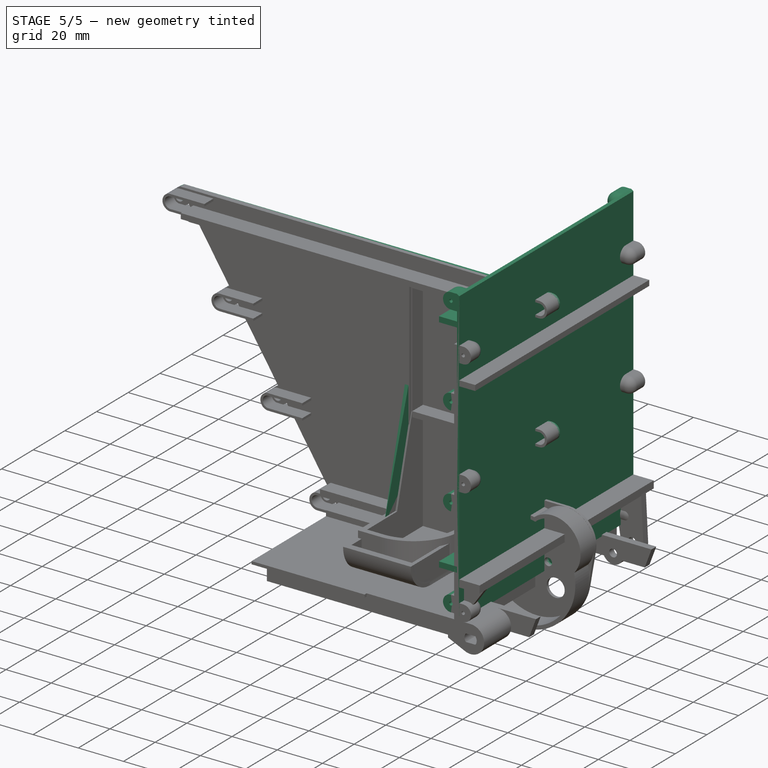
[diagram: stage 5 of 5 — iso view after this stage's code; geometry added in this stage tinted green]
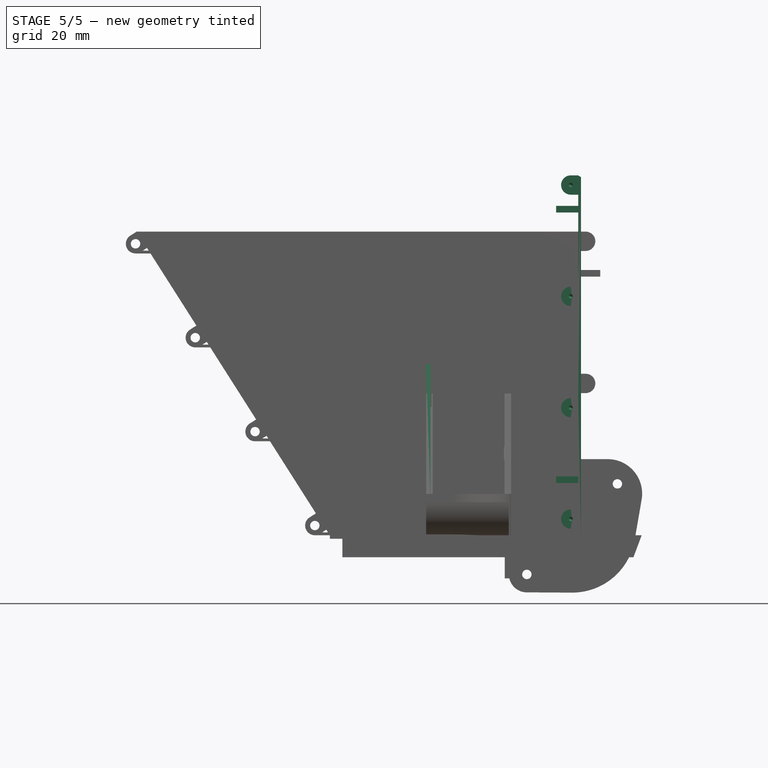
[diagram: stage 5 of 5 — front view after this stage's code; geometry added in this stage tinted green]
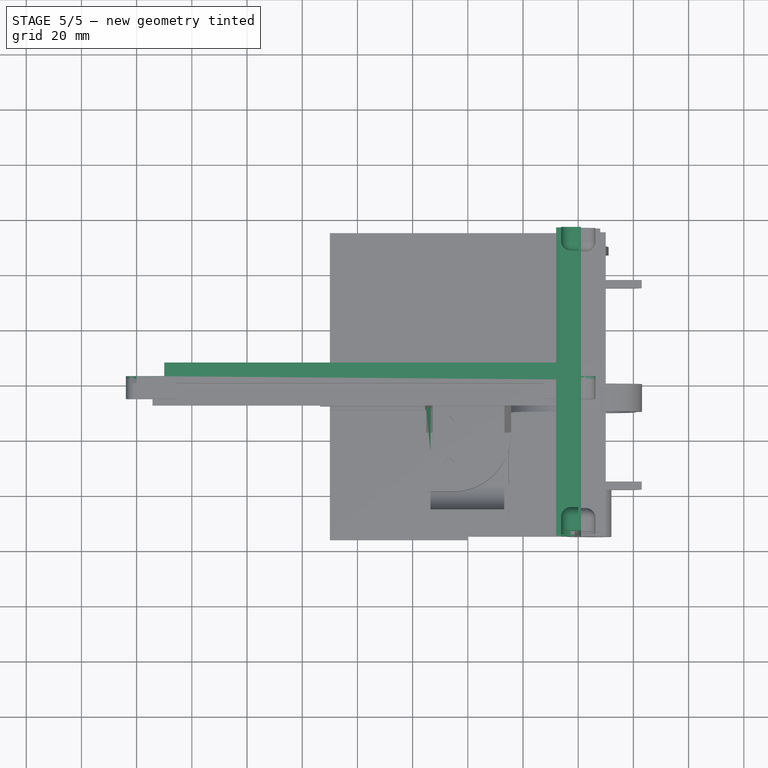
[diagram: stage 5 of 5 — top view after this stage's code; geometry added in this stage tinted green]
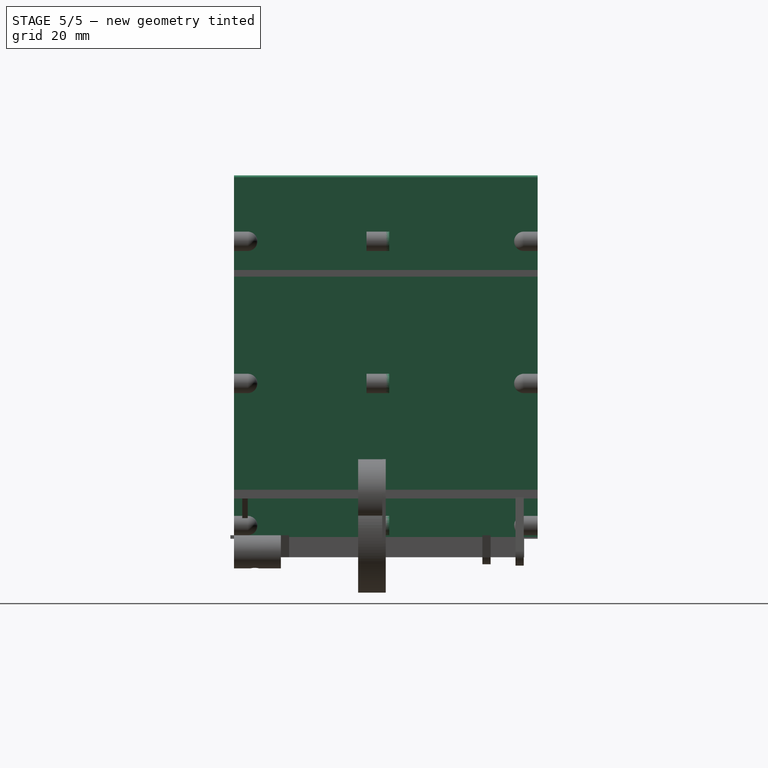
[diagram: stage 5 of 5 — right view after this stage's code; geometry added in this stage tinted green]
FEATURE [Sketcher::SketchObject] Sketch
  FullyConstrained = true
  MapMode = 5
  Placement = pos=(0,0,0) rot=(1,0,0;1.5708rad)
  Support = -> [XZ_Plane]
  expr: Constraints[10] = Spreadsheet.bunker_Length
  expr: Constraints[9] = Spreadsheet.bunker_height
  expr: Constraints[8] = Spreadsheet.bunker_hopperThroatLength
  sketch-geometry (4):
    g0: LineSegment StartX=0 StartY=0 StartZ=0 EndX=0 EndY=110 EndZ=0
    g1: LineSegment StartX=0 StartY=110 StartZ=0 EndX=-160 EndY=110 EndZ=0
    g2: LineSegment StartX=-160 StartY=110 StartZ=0 EndX=-90 EndY=0 EndZ=0
    g3: LineSegment StartX=-90 StartY=0 StartZ=0 EndX=0 EndY=0 EndZ=0
  constraints (11):
    c: Coincident(g-1,g0)
    c: PointOnObject(g0,g-2)
    c: Coincident(g0,g1)
    c: Horizontal(g1)
    c: Coincident(g1,g2)
    c: PointOnObject(g2,g-1)
    c: Coincident(g2,g3)
    c: Coincident(g3,g0)
    c: Distance(g3) = 90
    c: Distance(g0) = 110
    c: Distance(g1) = 160
FEATURE [PartDesign::Pad] Pad
  Direction = (1,1,1)
  Length = 1.28
  Length2 = 100
  Placement = pos=(0,0,0) rot=(1,0,0;1.5708rad)
  Profile = -> Sketch
  Reversed = true
  Type = 0
  expr: Length = Spreadsheet.wall_thickness
FEATURE [Sketcher::SketchObject] Sketch005
  FullyConstrained = false
  MapMode = 5
  Placement = pos=(0,1.28,3e-16) rot=(-1,0,0;1.5708rad)
  Support = -> [Pad]
  expr: Constraints[10] = Spreadsheet.bunker_Length - 15
  sketch-geometry (8):
    g0: LineSegment StartX=-150 StartY=-105.848 StartZ=0 EndX=-5 EndY=-105.848 EndZ=0
    g1: LineSegment StartX=-5 StartY=-105.848 StartZ=0 EndX=-5 EndY=-104.248 EndZ=0
    g2: LineSegment StartX=-5 StartY=-104.248 StartZ=0 EndX=-150 EndY=-104.248 EndZ=0
    g3: LineSegment StartX=-150 StartY=-104.248 StartZ=0 EndX=-150 EndY=-105.848 EndZ=0
    g4: LineSegment StartX=-87.4242 StartY=-4.37192 StartZ=0 EndX=-5 EndY=-4.37192 EndZ=0
    g5: LineSegment StartX=-5 StartY=-4.37192 StartZ=0 EndX=-5 EndY=-5.97192 EndZ=0
    g6: LineSegment StartX=-5 StartY=-5.97192 StartZ=0 EndX=-87.4242 EndY=-5.97192 EndZ=0
    g7: LineSegment StartX=-87.4242 StartY=-5.97192 StartZ=0 EndX=-87.4242 EndY=-4.37192 EndZ=0
  constraints (21):
    c: Coincident(g0,g1)
    c: Coincident(g1,g2)
    c: Coincident(g2,g3)
    c: Coincident(g3,g0)
    c: Horizontal(g0)
    c: Horizontal(g2)
    c: Vertical(g1)
    c: Vertical(g3)
    c: Distance(g1) = 1.6
    c: Distance(g0,g-2) = 5
    c: Distance(g0) = 145
    c: Coincident(g4,g5)
    c: Coincident(g5,g6)
    c: Coincident(g6,g7)
    c: Coincident(g7,g4)
    c: Horizontal(g4)
    c: Horizontal(g6)
    c: Vertical(g5)
    c: Vertical(g7)
    c: Equal(g1,g5)
    c: Distance(g5,g-2) = 5
FEATURE [PartDesign::Pad] Pad003
  BaseFeature = -> Pad
  Direction = (1,1,1)
  Length = 5
  Length2 = 100
  Placement = pos=(0,0,0) rot=(1,0,0;1.5708rad)
  Profile = -> Sketch005
  Type = 0
FEATURE [Sketcher::SketchObject] Sketch006
  ExternalGeometry = -> [Pad003]
  FullyConstrained = true
  MapMode = 5
  Placement = pos=(0,1.28,3e-16) rot=(-1,0,0;1.5708rad)
  Support = -> [Pad003]
  expr: Constraints[35] = Spreadsheet.fixture_offsetDiameter
  expr: Constraints[26] = Spreadsheet.fixture_outerDiameter
  expr: Constraints[27] = Spreadsheet.fixture_frontDiameter
  expr: Constraints[17] = Spreadsheet.fixture_frontDiameter
  expr: Constraints[16] = Spreadsheet.fixture_outerDiameter
  expr: Constraints[15] = Spreadsheet.fixture_offsetDiameter
  sketch-geometry (12):
    g0: LineSegment StartX=0 StartY=-110 StartZ=0 EndX=0 EndY=-106.5 EndZ=0
    g1: LineSegment StartX=0 StartY=-110 StartZ=0 EndX=2.69998 EndY=-110 EndZ=0
    g2: ArcOfCircle CenterX=2.7 CenterY=-106.5 CenterZ=0 NormalX=0 NormalY=0 NormalZ=1 AngleXU=0 Radius=1.7 StartAngle=3.14159 EndAngle=6.28319
    g3: ArcOfCircle CenterX=2.7 CenterY=-106.5 CenterZ=0 NormalX=0 NormalY=0 NormalZ=1 AngleXU=0 Radius=3.5 StartAngle=4.71238 EndAngle=6.28319
    g4: LineSegment StartX=0 StartY=-106.5 StartZ=0 EndX=1 EndY=-106.5 EndZ=0
    g5: LineSegment StartX=4.4 StartY=-106.5 StartZ=0 EndX=6.2 EndY=-106.5 EndZ=0
    g6: LineSegment StartX=-160 StartY=-110 StartZ=0 EndX=-158.121 EndY=-107.047 EndZ=0
    g7: LineSegment StartX=-160 StartY=-110 StartZ=0 EndX=-162.278 EndY=-108.55 EndZ=0
    g8: ArcOfCircle CenterX=-160.399 CenterY=-105.598 CenterZ=0 NormalX=0 NormalY=0 NormalZ=1 AngleXU=0 Radius=1.7 StartAngle=2.57486 EndAngle=5.71646
    g9: ArcOfCircle CenterX=-160.399 CenterY=-105.598 CenterZ=0 NormalX=0 NormalY=0 NormalZ=1 AngleXU=0 Radius=3.5 StartAngle=2.57486 EndAngle=4.14567
    g10: LineSegment StartX=-158.121 StartY=-107.047 StartZ=0 EndX=-158.965 EndY=-106.51 EndZ=0
    g11: LineSegment StartX=-161.833 StartY=-104.685 StartZ=0 EndX=-163.352 EndY=-103.719 EndZ=0
  constraints (36):
    c: Coincident(g0,g-3)
    c: PointOnObject(g0,g-2)
    c: Coincident(g1,g0)
    c: Horizontal(g1)
    c: Coincident(g3,g2)
    c: Coincident(g3,g1)
    c: Coincident(g4,g0)
    c: Coincident(g4,g2)
    c: Coincident(g5,g2)
    c: Coincident(g5,g3)
    c: Horizontal(g5)
    c: Horizontal(g4)
    c: Tangent(g1,g3)
    c: Horizontal(g2,g2)
    c: Horizontal(g2,g2)
    c: Distance(g2,g-2) = 2.7
    c: Diameter(g3) = 7
    c: Diameter(g2) = 3.4
    c: Coincident(g7,g6)
    c: Coincident(g9,g8)
    c: Coincident(g9,g7)
    c: Coincident(g10,g6)
    c: Coincident(g10,g8)
    c: Coincident(g11,g8)
    c: Coincident(g11,g9)
    c: Tangent(g7,g9)
    c: Diameter(g9) = 7
    c: Diameter(g8) = 3.4
    c: Coincident(g6,g-4)
    c: PointOnObject(g6,g-4)
    c: Parallel(g7,g10)
    c: Parallel(g10,g11)
    c: PointOnObject(g8,g10)
    c: PointOnObject(g8,g11)
    c: Perpendicular(g-4,g10)
    c: Distance(g8,g-4) = 2.7
FEATURE [Sketcher::SketchObject] Sketch007
  ExternalGeometry = -> [Pad003]
  FullyConstrained = true
  MapMode = 5
  Placement = pos=(0,1.28,3e-16) rot=(-1,0,0;1.5708rad)
  Support = -> [Pad003]
  expr: Constraints[35] = Sketch006.Constraints[35]
  expr: Constraints[26] = Sketch006.Constraints[26]
  expr: Constraints[27] = Sketch006.Constraints[27]
  expr: Constraints[17] = Sketch006.Constraints[17]
  expr: Constraints[16] = Sketch006.Constraints[16]
  expr: Constraints[15] = Sketch006.Constraints[15]
  sketch-geometry (12):
    g0: LineSegment StartX=0 StartY=-110 StartZ=0 EndX=0 EndY=-106.5 EndZ=0
    g1: LineSegment StartX=0 StartY=-110 StartZ=0 EndX=2.69998 EndY=-110 EndZ=0
    g2: ArcOfCircle CenterX=2.7 CenterY=-106.5 CenterZ=0 NormalX=0 NormalY=0 NormalZ=1 AngleXU=0 Radius=1.7 StartAngle=3.14159 EndAngle=6.28319
    g3: ArcOfCircle CenterX=2.7 CenterY=-106.5 CenterZ=0 NormalX=0 NormalY=0 NormalZ=1 AngleXU=0 Radius=3.5 StartAngle=4.71238 EndAngle=6.28319
    g4: LineSegment StartX=0 StartY=-106.5 StartZ=0 EndX=1 EndY=-106.5 EndZ=0
    g5: LineSegment StartX=4.4 StartY=-106.5 StartZ=0 EndX=6.2 EndY=-106.5 EndZ=0
    g6: LineSegment StartX=-160 StartY=-110 StartZ=0 EndX=-158.121 EndY=-107.047 EndZ=0
    g7: LineSegment StartX=-160 StartY=-110 StartZ=0 EndX=-162.278 EndY=-108.55 EndZ=0
    g8: ArcOfCircle CenterX=-160.399 CenterY=-105.598 CenterZ=0 NormalX=0 NormalY=0 NormalZ=1 AngleXU=0 Radius=1.7 StartAngle=2.57486 EndAngle=5.71646
    g9: ArcOfCircle CenterX=-160.399 CenterY=-105.598 CenterZ=0 NormalX=0 NormalY=0 NormalZ=1 AngleXU=0 Radius=3.5 StartAngle=2.57486 EndAngle=4.14567
    g10: LineSegment StartX=-158.121 StartY=-107.047 StartZ=0 EndX=-158.965 EndY=-106.51 EndZ=0
    g11: LineSegment StartX=-161.833 StartY=-104.685 StartZ=0 EndX=-163.352 EndY=-103.719 EndZ=0
  constraints (36):
    c: Coincident(g0,g-3)
    c: PointOnObject(g0,g-2)
    c: Coincident(g1,g0)
    c: Horizontal(g1)
    c: Coincident(g3,g2)
    c: Coincident(g3,g1)
    c: Coincident(g4,g0)
    c: Coincident(g4,g2)
    c: Coincident(g5,g2)
    c: Coincident(g5,g3)
    c: Horizontal(g5)
    c: Horizontal(g4)
    c: Tangent(g1,g3)
    c: Horizontal(g2,g2)
    c: Horizontal(g2,g2)
    c: Distance(g2,g-2) = 2.7
    c: Diameter(g3) = 7
    c: Diameter(g2) = 3.4
    c: Coincident(g7,g6)
    c: Coincident(g9,g8)
    c: Coincident(g9,g7)
    c: Coincident(g10,g6)
    c: Coincident(g10,g8)
    c: Coincident(g11,g8)
    c: Coincident(g11,g9)
    c: Tangent(g7,g9)
    c: Diameter(g9) = 7
    c: Diameter(g8) = 3.4
    c: Coincident(g6,g-4)
    c: PointOnObject(g6,g-4)
    c: Parallel(g7,g10)
    c: Parallel(g10,g11)
    c: PointOnObject(g8,g10)
    c: PointOnObject(g8,g11)
    c: Perpendicular(g-4,g10)
    c: Distance(g8,g-4) = 2.7
FEATURE [PartDesign::Pad] Pad004
  BaseFeature = -> Pad003
  Direction = (1,1,1)
  Length = 10
  Length2 = 100
  Placement = pos=(0,0,0) rot=(1,0,0;1.5708rad)
  Profile = -> Sketch006
  Type = 3
  UpToFace = -> Pad003 [Face4]
FEATURE [PartDesign::Mirrored] Mirrored
  MirrorPlane = -> Pad004 [Face3]
  Placement = pos=(0,0,0) rot=(1,0,0;1.5708rad)
FEATURE [PartDesign::LinearPattern] LinearPattern
  Direction = -> Sketch006 [V_Axis]
  Length = 103
  Occurrences = 3
  Placement = pos=(0,0,0) rot=(1,0,0;1.5708rad)
  expr: Length = Spreadsheet.bunker_height - Spreadsheet.fixture_outerDiameter
FEATURE [PartDesign::MultiTransform] MultiTransform
  BaseFeature = -> Pad004
  Originals = -> [Pad004]
  Placement = pos=(0,0,0) rot=(1,0,0;1.5708rad)
  Transformations = -> [Mirrored,LinearPattern]
FEATURE [PartDesign::Pad] Pad005
  BaseFeature = -> MultiTransform
  Direction = (1,1,1)
  Length = 10
  Length2 = 100
  Placement = pos=(0,0,0) rot=(1,0,0;1.5708rad)
  Profile = -> Sketch007
  Type = 3
  UpToFace = -> MultiTransform [Face1]
FEATURE [PartDesign::Mirrored] Mirrored001
  MirrorPlane = -> Pad005 [Face36]
  Placement = pos=(0,0,0) rot=(1,0,0;1.5708rad)
FEATURE [PartDesign::LinearPattern] LinearPattern001
  Direction = -> Pad005 [Edge52]
  Length = 121.017
  Occurrences = 4
  Placement = pos=(0,0,0) rot=(1,0,0;1.5708rad)
  expr: Length = Spreadsheet.bunker_backsideLength - Spreadsheet.x - Spreadsheet.fixture_outerDiameter / 2
FEATURE [PartDesign::MultiTransform] MultiTransform001
  BaseFeature = -> Pad005
  Originals = -> [Pad005]
  Placement = pos=(0,0,0) rot=(1,0,0;1.5708rad)
  Transformations = -> [Mirrored001,LinearPattern001]
FEATURE [PartDesign::Body] Body  label="Right"
  Group = -> [Sketch,Pad,Sketch001,Sketch005,Pad003,Sketch006,Sketch007,Pad004,MultiTransform,Mirrored,LinearPattern,Pad005,MultiTransform001,Mirrored001,LinearPattern001]
  Origin = -> Origin
  Placement = pos=(0,55,0) rot=(0,0,1;0rad)
  Tip = -> MultiTransform001
  expr: .Placement.Base.y = Spreadsheet.bunker_width / 2
FEATURE [Sketcher::SketchObject] Sketch008
  FullyConstrained = true
  MapMode = 5
  Placement = pos=(0,0,0) rot=(1,0,0;1.5708rad)
  Support = -> [XZ_Plane003]
  expr: Constraints[8] = Spreadsheet.bunker_hopperThroatLength
  expr: Constraints[9] = Spreadsheet.bunker_height
  expr: Constraints[70] = Spreadsheet.fixture_frontDiameter
  expr: Constraints[10] = Spreadsheet.bunker_Length
  expr: Constraints[72] = Spreadsheet.fixture_outerDiameter / 2
  expr: Constraints[71] = Spreadsheet.fixture_offsetDiameter
  sketch-geometry (27):
    g0: LineSegment StartX=0 StartY=0 StartZ=0 EndX=-90 EndY=-1.8e-15 EndZ=0
    g1: LineSegment StartX=-90 StartY=-1.8e-15 StartZ=0 EndX=-160 EndY=110 EndZ=0
    g2: LineSegment StartX=-160 StartY=110 StartZ=0 EndX=0 EndY=110 EndZ=0
    g3: LineSegment StartX=0 StartY=110 StartZ=0 EndX=0 EndY=0 EndZ=0
    g4: ArcOfCircle CenterX=-2.20244 CenterY=2.20244 CenterZ=0 NormalX=0 NormalY=0 NormalZ=1 AngleXU=0 Radius=23 StartAngle=1.35702 EndAngle=3.64048
    g5: ArcOfCircle CenterX=10.6315 CenterY=15.0364 CenterZ=0 NormalX=0 NormalY=0 NormalZ=1 AngleXU=0 Radius=12.5 StartAngle=5.59342 EndAngle=8.54375
    g6: ArcOfCircle CenterX=-18.6073 CenterY=-14.2024 CenterZ=0 NormalX=0 NormalY=0 NormalZ=1 AngleXU=0 Radius=6.5 StartAngle=2.35619 EndAngle=5.49779
    g7: LineSegment StartX=-23.2035 StartY=-9.60623 StartZ=0 EndX=-22.3991 EndY=-8.80185 EndZ=0
    g8: LineSegment StartX=-14.0111 StartY=-18.7986 StartZ=0 EndX=-13.2067 EndY=-17.9942 EndZ=0
    g9: Circle CenterX=6 CenterY=-6 CenterZ=0 NormalX=0 NormalY=0 NormalZ=1 AngleXU=0 Radius=4
    g10: Circle CenterX=-18.6073 CenterY=-14.2024 CenterZ=0 NormalX=0 NormalY=0 NormalZ=1 AngleXU=0 Radius=1.7
    g11: Circle CenterX=14.2024 CenterY=18.6073 CenterZ=0 NormalX=0 NormalY=0 NormalZ=1 AngleXU=0 Radius=1.7
    g12: LineSegment StartX=14.2024 StartY=18.6073 StartZ=0 EndX=-2.20244 EndY=2.20244 EndZ=0
    g13: LineSegment StartX=-2.20244 StartY=2.20244 StartZ=0 EndX=-18.6073 EndY=-14.2024 EndZ=0
    g14: LineSegment StartX=-2.20244 StartY=2.20244 StartZ=0 EndX=6 EndY=-6 EndZ=0
    g15: GeomPoint X=19.4704 Y=23.8753 Z=0
    g16: ArcOfCircle CenterX=-2.20244 CenterY=2.20244 CenterZ=0 NormalX=0 NormalY=0 NormalZ=1 AngleXU=0 Radius=23 StartAngle=4.2135 EndAngle=6.49696
    g17: LineSegment StartX=-18.6073 StartY=-14.2024 StartZ=0 EndX=-18.6073 EndY=0 EndZ=0
    g18: LineSegment StartX=14.2024 StartY=18.6073 StartZ=0 EndX=0 EndY=18.6073 EndZ=0
    g19: LineSegment StartX=6 StartY=-6 StartZ=0 EndX=0 EndY=-6 EndZ=0
    g20: LineSegment StartX=6 StartY=-6 StartZ=0 EndX=6 EndY=0 EndZ=0
    g21: LineSegment StartX=-90 StartY=-1.8e-15 StartZ=0 EndX=-25.0967 EndY=-1.8e-15 EndZ=0
    g22: LineSegment StartX=0 StartY=110 StartZ=0 EndX=0 EndY=25.0967 EndZ=0
    g23: ArcOfCircle CenterX=-2.20244 CenterY=2.20244 CenterZ=0 NormalX=0 NormalY=0 NormalZ=1 AngleXU=0 Radius=23 StartAngle=1.35702 EndAngle=1.47489
    g24: ArcOfCircle CenterX=-2.20244 CenterY=2.20244 CenterZ=0 NormalX=0 NormalY=0 NormalZ=1 AngleXU=0 Radius=23 StartAngle=3.2375 EndAngle=3.64048
    g25: Circle CenterX=2.7 CenterY=3.5 CenterZ=0 NormalX=0 NormalY=0 NormalZ=1 AngleXU=0 Radius=1.7
    g26: GeomPoint X=6 Y=-2 Z=0
  constraints (76):
    c: Coincident(g-1,g0)
    c: PointOnObject(g0,g-1)
    c: Coincident(g0,g1)
    c: Coincident(g1,g2)
    c: PointOnObject(g2,g-2)
    c: Horizontal(g2)
    c: Coincident(g2,g3)
    c: Coincident(g3,g0)
    c: Distance(g0) = 90
    c: Distance(g3) = 110
    c: Distance(g2) = 160
    c: Coincident(g7,g6)
    c: Coincident(g8,g6)
    c: Parallel(g8,g7)
    c: Tangent(g7,g6)
    c: Tangent(g8,g6)
    c: Diameter(g5) = 25
    c: Coincident(g10,g6)
    c: Distance(g11,g6) = 46.4
    c: Distance(g9,g4) = 11.6
    c: Diameter(g4) = 46
    c: Coincident(g12,g11)
    c: Coincident(g12,g4)
    c: Coincident(g13,g4)
    c: Coincident(g13,g6)
    c: Coincident(g14,g4)
    c: Coincident(g14,g9)
    c: Perpendicular(g13,g14)
    c: Perpendicular(g12,g14)
    c: Equal(g12,g13)
    c: PointOnObject(g5,g12)
    c: Diameter(g6) = 13
    c: Diameter(g9) = 8
    c: Diameter(g10) = 3.4
    c: Equal(g10,g11)
    c: Parallel(g13,g8)
    c: PointOnObject(g15,g5)
    c: PointOnObject(g15,g12)
    c: Distance(g11,g15) = 7.45
    c: Coincident(g16,g5)
    c: Coincident(g4,g5)
    c: Equal(g4,g16)
    c: Coincident(g16,g8)
    c: Coincident(g4,g16)
    c: Coincident(g4,g7)
    c: Coincident(g17,g6)
    c: PointOnObject(g17,g0)
    c: Vertical(g17)
    c: Coincident(g18,g11)
    c: PointOnObject(g18,g3)
    c: Horizontal(g18)
    c: Equal(g18,g17)
    c: Coincident(g19,g9)
    c: PointOnObject(g19,g-2)
    c: Horizontal(g19)
    c: Coincident(g20,g9)
    c: PointOnObject(g20,g-1)
    c: Vertical(g20)
    c: Equal(g20,g19)
    c: Distance(g19) = 6
    c: Coincident(g21,g1)
    c: Coincident(g22,g2)
    c: Vertical(g22)
    c: Coincident(g23,g16)
    c: Coincident(g23,g22)
    c: Coincident(g23,g5)
    c: Coincident(g24,g7)
    c: Coincident(g24,g21)
    c: Coincident(g24,g16)
    c: Horizontal(g21)
    c: Diameter(g25) = 3.4
    c: Distance(g25,g-2) = 2.7
    c: Distance(g25,g-1) = 3.5
    c: PointOnObject(g26,g9)
    c: PointOnObject(g26,g20)
    c: Distance(g26,g20) = 2
FEATURE [Sketcher::SketchObject] Sketch009
  FullyConstrained = true
  MapMode = 5
  Placement = pos=(0,0,0) rot=(0.57735,0.57735,0.57735;2.0944rad)
  Support = -> [YZ_Plane004]
  expr: Constraints[9] = hypot(Spreadsheet.bunker_Length - Spreadsheet.bunker_hopperThroatLength; Spreadsheet.bunker_height)
  expr: Constraints[10] = Spreadsheet.bunker_width / 2
  sketch-geometry (4):
    g0: LineSegment StartX=0 StartY=0 StartZ=0 EndX=55 EndY=0 EndZ=0
    g1: LineSegment StartX=55 StartY=0 StartZ=0 EndX=55 EndY=130.384 EndZ=0
    g2: LineSegment StartX=55 StartY=130.384 StartZ=0 EndX=0 EndY=130.384 EndZ=0
    g3: LineSegment StartX=0 StartY=130.384 StartZ=0 EndX=0 EndY=0 EndZ=0
  constraints (11):
    c: Coincident(g0,g1)
    c: Coincident(g1,g2)
    c: Coincident(g2,g3)
    c: Coincident(g3,g0)
    c: Horizontal(g0)
    c: Horizontal(g2)
    c: Vertical(g1)
    c: Vertical(g3)
    c: Coincident(g0,g-1)
    c: Distance(g3) = 130.384
    c: Distance(g0) = 55
FEATURE [PartDesign::Pad] Pad006
  Direction = (1,0,-0.636364)
  Length = 1
  Length2 = 100
  Placement = pos=(0,0,0) rot=(0.57735,0.57735,0.57735;2.0944rad)
  Profile = -> Sketch009
  Type = 0
  UseCustomVector = true
  expr: .Direction.z = -(Spreadsheet.bunker_Length - Spreadsheet.bunker_hopperThroatLength) / Spreadsheet.bunker_height
FEATURE [PartDesign::Pad] Pad009
  BaseFeature = -> Pad006
  Direction = (1,1,1)
  Length = 5
  Length2 = 100
  Placement = pos=(0,0,0) rot=(0.57735,0.57735,0.57735;2.0944rad)
  Profile = -> Sketch010
  Reversed = true
  Type = 0
FEATURE [PartDesign::Revolution] Revolution001
  Angle = 90
  Axis = (1,-2e-16,1e-16)
  Base = (-1.95,50,5.86677)
  BaseFeature = -> Pad009
  Placement = pos=(0,0,0) rot=(0.57735,0.57735,0.57735;2.0944rad)
  Profile = -> Pad009 [Face9]
  ReferenceAxis = -> Pad009 [Edge24]
  Reversed = true
FEATURE [Sketcher::SketchObject] Sketch013
  FullyConstrained = false
  MapMode = 5
  Placement = pos=(-1e-16,0,0) rot=(0.57735,0.57735,-0.57735;4.18879rad)
  Support = -> [Revolution001]
  expr: Constraints[21] = Spreadsheet.bunker_width / 2
  sketch-geometry (8):
    g0: LineSegment StartX=0 StartY=-119.342 StartZ=0 EndX=55 EndY=-119.342 EndZ=0
    g1: LineSegment StartX=55 StartY=-119.342 StartZ=0 EndX=55 EndY=-116.942 EndZ=0
    g2: LineSegment StartX=55 StartY=-116.942 StartZ=0 EndX=0 EndY=-116.942 EndZ=0
    g3: LineSegment StartX=0 StartY=-116.942 StartZ=0 EndX=0 EndY=-119.342 EndZ=0
    g4: LineSegment StartX=0 StartY=-21.3274 StartZ=0 EndX=55 EndY=-21.3274 EndZ=0
    g5: LineSegment StartX=55 StartY=-21.3274 StartZ=0 EndX=55 EndY=-18.9274 EndZ=0
    g6: LineSegment StartX=55 StartY=-18.9274 StartZ=0 EndX=0 EndY=-18.9274 EndZ=0
    g7: LineSegment StartX=0 StartY=-18.9274 StartZ=0 EndX=0 EndY=-21.3274 EndZ=0
  constraints (22):
    c: Coincident(g0,g1)
    c: Coincident(g1,g2)
    c: Coincident(g2,g3)
    c: Coincident(g3,g0)
    c: Horizontal(g0)
    c: Horizontal(g2)
    c: Vertical(g1)
    c: Vertical(g3)
    c: PointOnObject(g0,g-2)
    c: Coincident(g4,g5)
    c: Coincident(g5,g6)
    c: Coincident(g6,g7)
    c: Coincident(g7,g4)
    c: Horizontal(g4)
    c: Horizontal(g6)
    c: Vertical(g5)
    c: Vertical(g7)
    c: PointOnObject(g4,g-2)
    c: Equal(g5,g1)
    c: Distance(g1) = 2.4
    c: Equal(g2,g4)
    c: Distance(g2) = 55
FEATURE [PartDesign::Pad] Pad010
  BaseFeature = -> Revolution001
  Direction = (1,1,1)
  Length = 8
  Length2 = 100
  Placement = pos=(0,0,0) rot=(0.57735,0.57735,0.57735;2.0944rad)
  Profile = -> Sketch013
  Type = 0
FEATURE [PartDesign::Mirrored] Mirrored005
  BaseFeature = -> Pad010
  MirrorPlane = -> Sketch009 [V_Axis]
  Originals = -> [Pad006,Pad010]
  Placement = pos=(0,0,0) rot=(0.57735,0.57735,0.57735;2.0944rad)
FEATURE [PartDesign::Mirrored] Mirrored006
  MirrorPlane = -> Mirrored005 [Face27]
  Placement = pos=(0,0,0) rot=(0.57735,0.57735,0.57735;2.0944rad)
FEATURE [PartDesign::Mirrored] Mirrored007
  MirrorPlane = -> XZ_Plane004
  Placement = pos=(0,0,0) rot=(0.57735,0.57735,0.57735;2.0944rad)
FEATURE [PartDesign::LinearPattern] LinearPattern003
  Direction = -> Sketch010 [H_Axis]
  Length = 121.017
  Occurrences = 4
  Placement = pos=(0,0,0) rot=(0.57735,0.57735,0.57735;2.0944rad)
  expr: Length = Spreadsheet.bunker_backsideLength - Spreadsheet.x - Spreadsheet.fixture_outerDiameter / 2
FEATURE [PartDesign::MultiTransform] MultiTransform003
  BaseFeature = -> Mirrored005
  Originals = -> [Pad009,Revolution001]
  Placement = pos=(0,0,0) rot=(0.57735,0.57735,0.57735;2.0944rad)
  Transformations = -> [Mirrored006,Mirrored007,LinearPattern003]
FEATURE [PartDesign::Pocket] Pocket004
  BaseFeature = -> Pad027
  Length = 32
  Length2 = 100
  Placement = pos=(0,0,0) rot=(1,0,0;1.5708rad)
  Profile = -> Pad027 [Face207]
  Type = 0
FEATURE [Sketcher::SketchObject] Sketch032
  ExternalGeometry = -> [Pocket004]
  FullyConstrained = false
  MapMode = 5
  Placement = pos=(-55.0967,0,0) rot=(0.707107,0,-0.707107;3.14159rad)
  Support = -> [Pocket004]
  sketch-geometry (3):
    g0: LineSegment StartX=-12.0105 StartY=9.28 StartZ=0 EndX=-12 EndY=24.7924 EndZ=0
    g1: LineSegment StartX=-12 StartY=24.7924 StartZ=0 EndX=-62.1194 EndY=9.28 EndZ=0
    g2: LineSegment StartX=-62.1194 StartY=9.28 StartZ=0 EndX=-12.0105 EndY=9.28 EndZ=0
  constraints (6):
    c: Coincident(g0,g-4)
    c: PointOnObject(g0,g-3)
    c: Coincident(g1,g0)
    c: PointOnObject(g1,g-4)
    c: Coincident(g2,g1)
    c: Coincident(g2,g0)
FEATURE [PartDesign::Pad] Pad028
  BaseFeature = -> Pocket004
  Direction = (1,1,1)
  Length = 1.6
  Length2 = 100
  Placement = pos=(0,0,0) rot=(1,0,0;1.5708rad)
  Profile = -> Sketch032
  Reversed = true
  Type = 0
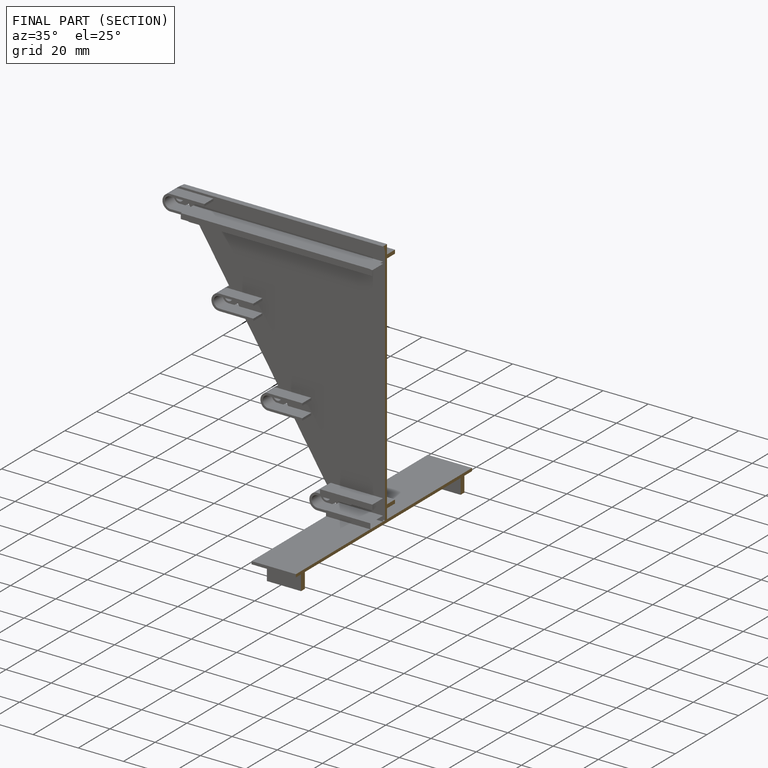
[diagram: finished part — half-section view (interior)]
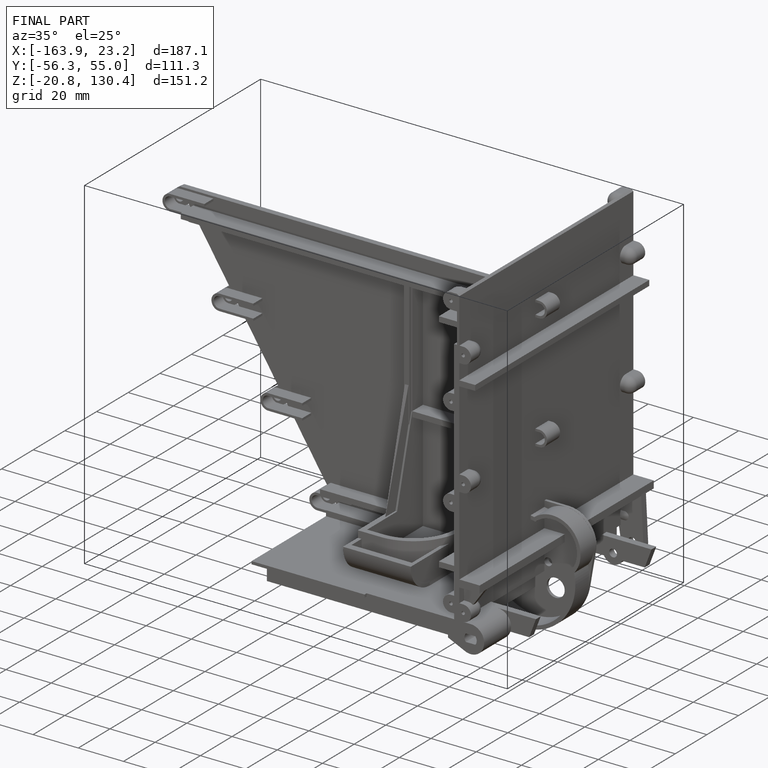
[diagram: finished part — iso view with bounding-box wireframe]
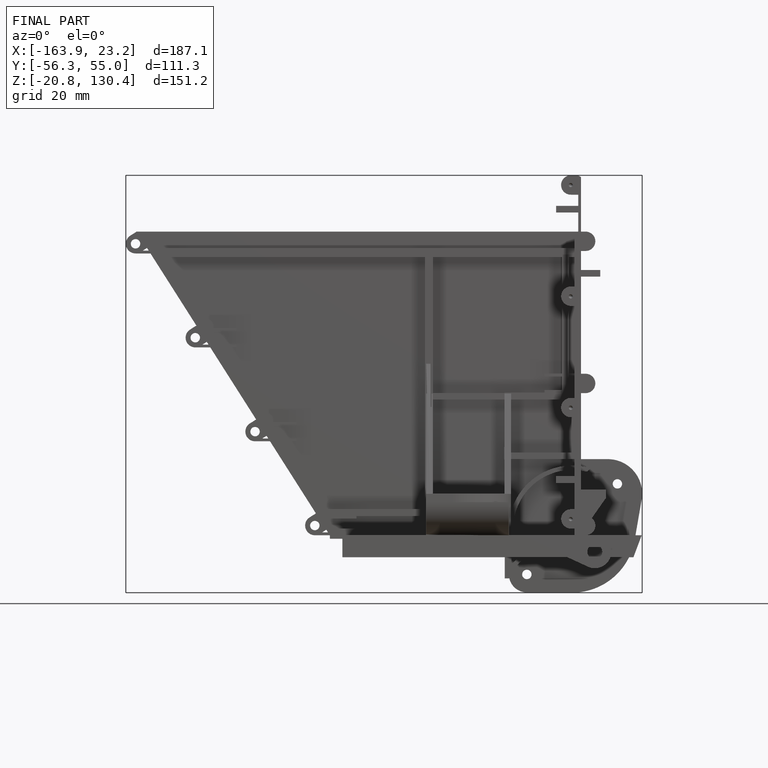
[diagram: finished part — front view with bounding-box wireframe]
